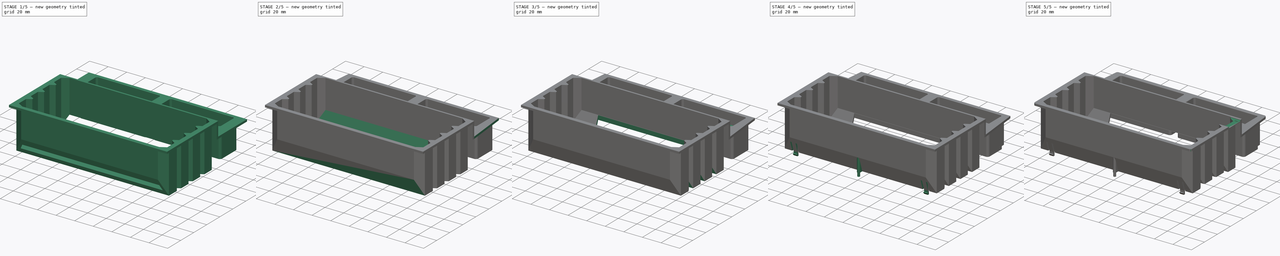
[diagram: build sequence overview — one tinted view per stage of 5, left to right]
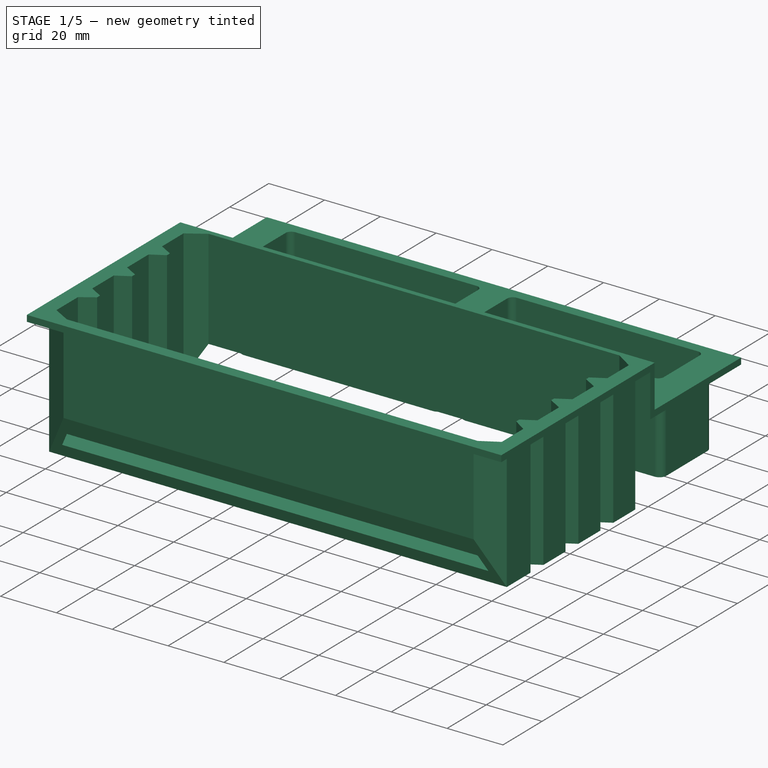
[diagram: stage 1 of 5 — iso view after this stage's code; geometry added in this stage tinted green]
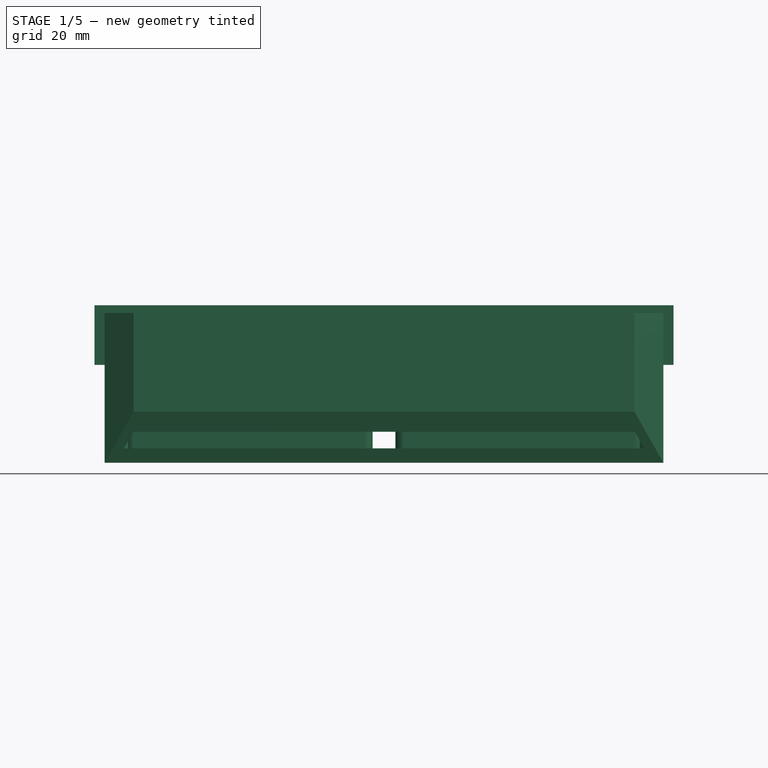
[diagram: stage 1 of 5 — front view after this stage's code; geometry added in this stage tinted green]
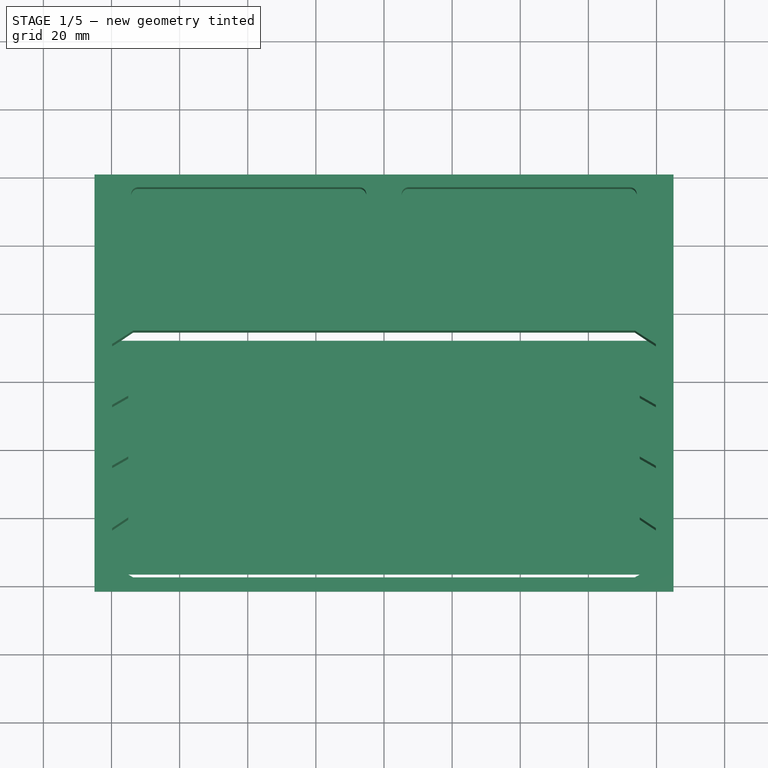
[diagram: stage 1 of 5 — top view after this stage's code; geometry added in this stage tinted green]
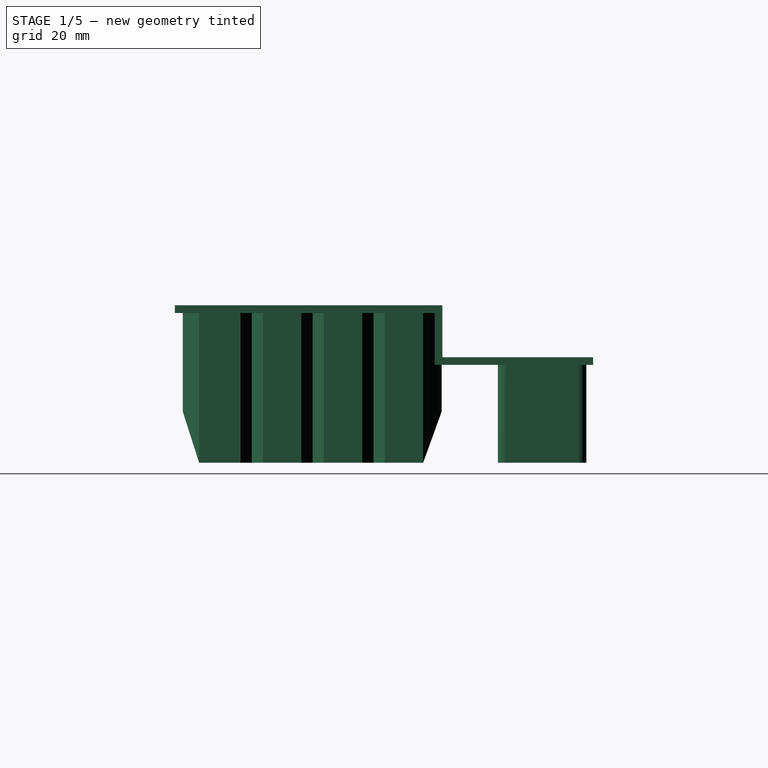
[diagram: stage 1 of 5 — right view after this stage's code; geometry added in this stage tinted green]
FCSTD DOCUMENT  (FreeCAD 1.0R38806 (Git))
Label: CartridgePort800
License: Creative Commons Attribution 4.0
LicenseURL: https://creativecommons.org/licenses/by/4.0/
objects: Sketcher::SketchObject×27, PartDesign::Pocket×16, PartDesign::Pad×14, PartDesign::Plane×3, PartDesign::Fillet×2, PartDesign::SubShapeBinder×1, PartDesign::Body×1
note: 155 computed .brp shape members not serialized (recipe doc carries the construction recipe); baked Part::Feature solids carry a one-line shape summary decoded from their .brp

FEATURE [Sketcher::SketchObject] Sketch
  ArcFitTolerance = 1e-06
  AttachmentSupport = -> [XY_Plane]
  FullyConstrained = true
  MakeInternals = false
  MapMode = 5
  sketch-geometry (52):
    g0: LineSegment StartX=-73.5 StartY=0 StartZ=0 EndX=73.5 EndY=0 EndZ=0
    g1: LineSegment StartX=73.5 StartY=76 StartZ=0 EndX=-73.5 EndY=76 EndZ=0
    g2: LineSegment StartX=3.35 StartY=116 StartZ=0 EndX=3.35 EndY=95 EndZ=0
    g3: LineSegment StartX=5.85 StartY=92.5 StartZ=0 EndX=73.55 EndY=92.5 EndZ=0
    g4: LineSegment StartX=76.05 StartY=95 StartZ=0 EndX=76.05 EndY=116 EndZ=0
    g5: LineSegment StartX=73.55 StartY=118.5 StartZ=0 EndX=5.85 EndY=118.5 EndZ=0
    g6: ArcOfCircle CenterX=5.85 CenterY=116 CenterZ=0 NormalX=0 NormalY=0 NormalZ=1 AngleXU=0 Radius=2.5 StartAngle=1.5708 EndAngle=3.14159
    g7: ArcOfCircle CenterX=5.85 CenterY=95 CenterZ=0 NormalX=0 NormalY=0 NormalZ=1 AngleXU=0 Radius=2.5 StartAngle=3.14159 EndAngle=4.71239
    g8: ArcOfCircle CenterX=73.55 CenterY=95 CenterZ=0 NormalX=0 NormalY=0 NormalZ=1 AngleXU=0 Radius=2.5 StartAngle=4.71239 EndAngle=6.28319
    g9: ArcOfCircle CenterX=73.55 CenterY=116 CenterZ=0 NormalX=0 NormalY=0 NormalZ=1 AngleXU=0 Radius=2.5 StartAngle=-2.7e-15 EndAngle=1.5708
    g10: GeomPoint [constr] X=3.35 Y=118.5 Z=0
    g11: GeomPoint [constr] X=76.05 Y=92.5 Z=0
    g12: LineSegment StartX=-76.05 StartY=116 StartZ=0 EndX=-76.05 EndY=95 EndZ=0
    g13: LineSegment StartX=-73.55 StartY=92.5 StartZ=0 EndX=-5.85 EndY=92.5 EndZ=0
    g14: LineSegment StartX=-3.35 StartY=95 StartZ=0 EndX=-3.35 EndY=116 EndZ=0
    g15: LineSegment StartX=-5.85 StartY=118.5 StartZ=0 EndX=-73.55 EndY=118.5 EndZ=0
    g16: ArcOfCircle CenterX=-73.55 CenterY=116 CenterZ=0 NormalX=0 NormalY=0 NormalZ=1 AngleXU=0 Radius=2.5 StartAngle=1.5708 EndAngle=3.14159
    g17: ArcOfCircle CenterX=-73.55 CenterY=95 CenterZ=0 NormalX=0 NormalY=0 NormalZ=1 AngleXU=0 Radius=2.5 StartAngle=3.14159 EndAngle=4.71239
    g18: ArcOfCircle CenterX=-5.85 CenterY=95 CenterZ=0 NormalX=0 NormalY=0 NormalZ=1 AngleXU=0 Radius=2.5 StartAngle=4.71239 EndAngle=6.28319
    g19: ArcOfCircle CenterX=-5.85 CenterY=116 CenterZ=0 NormalX=0 NormalY=0 NormalZ=1 AngleXU=0 Radius=2.5 StartAngle=-1.8e-15 EndAngle=1.5708
    g20: GeomPoint [constr] X=-76.05 Y=118.5 Z=0
    g21: GeomPoint [constr] X=-3.35 Y=92.5 Z=0
    g22: LineSegment StartX=76.2 StartY=56 StartZ=0 EndX=82 EndY=59.3 EndZ=0
    g23: LineSegment StartX=82 StartY=52.7 StartZ=0 EndX=76.2 EndY=56 EndZ=0
    g24: LineSegment StartX=82 StartY=41.4333 StartZ=0 EndX=82 EndY=52.7 EndZ=0
    g25: LineSegment StartX=76.2 StartY=38.1333 StartZ=0 EndX=82 EndY=41.4333 EndZ=0
    g26: LineSegment StartX=82 StartY=34.8333 StartZ=0 EndX=76.2 EndY=38.1333 EndZ=0
    g27: LineSegment StartX=82 StartY=23.5667 StartZ=0 EndX=82 EndY=34.8333 EndZ=0
    g28: LineSegment StartX=76.2 StartY=20.2667 StartZ=0 EndX=82 EndY=23.5667 EndZ=0
    g29: LineSegment StartX=82 StartY=16.9667 StartZ=0 EndX=76.2 EndY=20.2667 EndZ=0
    g30: LineSegment StartX=-82 StartY=59.3 StartZ=0 EndX=-76.2 EndY=56 EndZ=0
    g31: LineSegment StartX=-76.2 StartY=56 StartZ=0 EndX=-82 EndY=52.7 EndZ=0
    g32: LineSegment StartX=-82 StartY=52.7 StartZ=0 EndX=-82 EndY=41.4333 EndZ=0
    g33: LineSegment StartX=-82 StartY=41.4333 StartZ=0 EndX=-76.2 EndY=38.1333 EndZ=0
    g34: LineSegment StartX=-76.2 StartY=38.1333 StartZ=0 EndX=-82 EndY=34.8333 EndZ=0
    g35: LineSegment StartX=-82 StartY=34.8333 StartZ=0 EndX=-82 EndY=23.5667 EndZ=0
    g36: LineSegment StartX=-82 StartY=23.5667 StartZ=0 EndX=-76.2 EndY=20.2667 EndZ=0
    g37: LineSegment StartX=-76.2 StartY=20.2667 StartZ=0 EndX=-82 EndY=16.9667 EndZ=0
    g38: LineSegment [constr] StartX=-76.2 StartY=56 StartZ=0 EndX=76.2 EndY=56 EndZ=0
    g39: LineSegment [constr] StartX=-76.2 StartY=38.1333 StartZ=0 EndX=76.2 EndY=38.1333 EndZ=0
    g40: LineSegment [constr] StartX=-76.2 StartY=20.2667 StartZ=0 EndX=76.2 EndY=20.2667 EndZ=0
    g41: LineSegment [constr] StartX=82 StartY=59.3 StartZ=0 EndX=82 EndY=52.7 EndZ=0
    g42: LineSegment [constr] StartX=82 StartY=34.8333 StartZ=0 EndX=82 EndY=41.4333 EndZ=0
    g43: LineSegment [constr] StartX=82 StartY=23.5667 StartZ=0 EndX=82 EndY=16.9667 EndZ=0
    g44: LineSegment StartX=73.5 StartY=0 StartZ=0 EndX=82 EndY=4.8 EndZ=0
    g45: LineSegment StartX=82 StartY=4.8 StartZ=0 EndX=82 EndY=16.9667 EndZ=0
    g46: LineSegment StartX=-82 StartY=16.9667 StartZ=0 EndX=-82 EndY=4.8 EndZ=0
    g47: LineSegment StartX=-82 StartY=4.8 StartZ=0 EndX=-73.5 EndY=0 EndZ=0
    g48: LineSegment StartX=82 StartY=59.3 StartZ=0 EndX=82 EndY=70.5667 EndZ=0
    g49: LineSegment StartX=82 StartY=70.5667 StartZ=0 EndX=73.5 EndY=76 EndZ=0
    g50: LineSegment StartX=-73.5 StartY=76 StartZ=0 EndX=-82 EndY=70.5667 EndZ=0
    g51: LineSegment StartX=-82 StartY=70.5667 StartZ=0 EndX=-82 EndY=59.3 EndZ=0
  constraints (131):
    c: Coincident(g0,g44)
    c: Coincident(g49,g1)
    c: Coincident(g1,g50)
    c: Coincident(g47,g0)
    c: Horizontal(g1)
    c: PointOnObject(g0,g-1)
    c: Symmetric(g0,g0,g-2)
    c: Tangent(g2,g6) = -1.5708
    c: Tangent(g2,g7) = -1.5708
    c: Tangent(g3,g7) = -1.5708
    c: Tangent(g3,g8) = -1.5708
    c: Tangent(g4,g8) = -1.5708
    c: Tangent(g4,g9) = -1.5708
    c: Tangent(g5,g9) = -1.5708
    c: Tangent(g5,g6) = -1.5708
    c: Vertical(g2)
    c: Vertical(g4)
    c: Horizontal(g3)
    c: Horizontal(g5)
    c: Equal(g6,g7)
    c: Equal(g7,g8)
    c: Equal(g8,g9)
    c: PointOnObject(g10,g2)
    c: PointOnObject(g10,g5)
    c: PointOnObject(g11,g3)
    c: PointOnObject(g11,g4)
    c: Distance(g2,g4) = 72.7
    c: Distance(g3,g5) = 26
    c: Radius(g7) = 2.5
    c: DistanceY(g0,g5) = 118.5
    c: Tangent(g12,g16) = -1.5708
    c: Tangent(g12,g17) = -1.5708
    c: Tangent(g13,g17) = -1.5708
    c: Tangent(g13,g18) = -1.5708
    c: Tangent(g14,g18) = -1.5708
    c: Tangent(g14,g19) = -1.5708
    c: Tangent(g15,g19) = -1.5708
    c: Tangent(g15,g16) = -1.5708
    c: Vertical(g12)
    c: Vertical(g14)
    c: Horizontal(g13)
    c: Horizontal(g15)
    c: Equal(g16,g17)
    c: Equal(g17,g18)
    c: Equal(g18,g19)
    c: PointOnObject(g20,g12)
    c: PointOnObject(g20,g15)
    c: PointOnObject(g21,g13)
    c: PointOnObject(g21,g14)
    c: Equal(g18,g8)
    c: Equal(g5,g15)
    c: Equal(g2,g14)
    c: DistanceX(g14,g2) = 6.7
    c: Symmetric(g14,g2,g-2)
    c: Coincident(g22,g48)
    c: Coincident(g23,g22)
    c: Coincident(g24,g23)
    c: Coincident(g25,g24)
    c: Vertical(g24)
    c: Coincident(g26,g25)
    c: Coincident(g27,g26)
    c: Coincident(g28,g27)
    c: Vertical(g27)
    c: Coincident(g29,g28)
    c: Coincident(g45,g29)
    c: Coincident(g51,g30)
    c: Coincident(g30,g31)
    c: Coincident(g31,g32)
    c: Coincident(g32,g33)
    c: Vertical(g32)
    c: Coincident(g33,g34)
    c: Coincident(g34,g35)
    c: Coincident(g35,g36)
    c: Vertical(g35)
    c: Coincident(g36,g37)
    c: Coincident(g37,g46)
    c: Horizontal(g51,g48)
    c: Horizontal(g31,g23)
    c: Vertical(g51,g31)
    c: Vertical(g32,g34)
    c: Vertical(g35,g37)
    c: Vertical(g24,g26)
    c: Vertical(g27,g45)
    c: Vertical(g22,g25)
    c: Vertical(g25,g28)
    c: Vertical(g30,g33)
    c: Vertical(g36,g33)
    c: Horizontal(g34,g26)
    c: Horizontal(g32,g24)
    c: Horizontal(g37,g45)
    c: Horizontal(g35,g27)
    c: Coincident(g38,g30)
    c: Coincident(g38,g22)
    c: Coincident(g39,g33)
    c: Coincident(g39,g25)
    c: Coincident(g40,g36)
    c: Coincident(g40,g28)
    c: Symmetric(g48,g23,g38)
    c: Symmetric(g24,g26,g39)
    c: Symmetric(g27,g45,g40)
    c: Equal(g32,g35)
    c: DistanceX(g22,g48) = 5.8
    c: Symmetric(g30,g22,g-2)
    c: DistanceY(g0,g22) = 56
    c: DistanceY(g23,g48) = 6.6
    c: Coincident(g41,g48)
    c: Coincident(g41,g23)
    c: Coincident(g42,g26)
    c: Coincident(g42,g24)
    c: Coincident(g43,g27)
    c: Coincident(g43,g45)
    c: Equal(g41,g42)
    c: Equal(g41,g43)
    c: Coincident(g44,g45)
    c: Vertical(g45)
    c: Coincident(g46,g47)
    c: Vertical(g46)
    c: DistanceX(g46,g44) = 164
    c: DistanceY(g0,g1) = 76
    c: Symmetric(g46,g44,g-2)
    c: DistanceX(g0,g0) = 147
    c: DistanceY(g0,g44) = 4.8
    c: DistanceY(g25,g22) = 17.8667
    c: Coincident(g48,g49)
    c: Vertical(g48)
    c: Coincident(g50,g51)
    c: Vertical(g51)
    c: Vertical(g1,g0)
    c: Vertical(g1,g0)
    c: Equal(g24,g48)
    c: Horizontal(g50,g48)
FEATURE [Sketcher::SketchObject] Sketch001
  ArcFitTolerance = 1e-06
  AttachmentSupport = -> [YZ_Plane]
  FullyConstrained = true
  MakeInternals = false
  MapMode = 5
  Placement = pos=(0,0,0) rot=(0.57735,0.57735,0.57735;2.0944rad)
  sketch-geometry (8):
    g0: LineSegment StartX=-2.3 StartY=43.95 StartZ=0 EndX=73.95 EndY=43.95 EndZ=0
    g1: LineSegment StartX=73.95 StartY=43.95 StartZ=0 EndX=73.95 EndY=28.7 EndZ=0
    g2: LineSegment StartX=73.95 StartY=28.7 StartZ=0 EndX=120.45 EndY=28.7 EndZ=0
    g3: LineSegment StartX=120.45 StartY=28.7 StartZ=0 EndX=120.45 EndY=30.95 EndZ=0
    g4: LineSegment StartX=120.45 StartY=30.95 StartZ=0 EndX=76.2 EndY=30.95 EndZ=0
    g5: LineSegment StartX=76.2 StartY=30.95 StartZ=0 EndX=76.2 EndY=46.2 EndZ=0
    g6: LineSegment StartX=76.2 StartY=46.2 StartZ=0 EndX=-2.3 EndY=46.2 EndZ=0
    g7: LineSegment StartX=-2.3 StartY=46.2 StartZ=0 EndX=-2.3 EndY=43.95 EndZ=0
  constraints (24):
    c: Horizontal(g0)
    c: Coincident(g0,g1)
    c: Vertical(g1)
    c: Coincident(g1,g2)
    c: Horizontal(g2)
    c: Coincident(g2,g3)
    c: Vertical(g3)
    c: Coincident(g3,g4)
    c: Horizontal(g4)
    c: Coincident(g4,g5)
    c: Vertical(g5)
    c: Coincident(g5,g6)
    c: Horizontal(g6)
    c: Coincident(g6,g7)
    c: Coincident(g7,g0)
    c: Vertical(g7)
    c: Equal(g7,g3)
    c: DistanceY(g3,g3) = 2.25
    c: DistanceX(g0,g5) = 2.25
    c: DistanceX(g6,g5) = 78.5
    c: DistanceX(g1,g2) = 46.5
    c: DistanceY(g1,g5) = 17.5
    c: DistanceY(g-1,g6) = 46.2
    c: DistanceX(g0,g-1) = 2.3
FEATURE [PartDesign::Pad] Pad
  Direction = (1,0,0)
  Length = 170
  Length2 = 10
  Midplane = true
  Placement = pos=(0,0,0) rot=(1,1,1;2.0944rad)
  Profile = -> Sketch001
  ReferenceAxis = -> Sketch001 [N_Axis]
  Suppressed = false
  Type = 0
FEATURE [PartDesign::Pad] Pad001
  BaseFeature = -> Pad
  Direction = (0,0,1)
  Length = 10
  Length2 = 10
  Placement = pos=(0,0,0) rot=(1,1,1;2.0944rad)
  Profile = -> Sketch [Edge31,Edge32,Edge33,Edge34,Edge27,Edge28,Edge29,Edge30,Edge40,Edge41,Edge42,Edge35,Edge36,Edge37,Edge38,Edge39]
  ReferenceAxis = -> Sketch [N_Axis]
  Suppressed = false
  Type = 3
  UpToFace = -> Pad [Face3]
FEATURE [PartDesign::Pad] Pad002
  BaseFeature = -> Pad001
  Direction = (0,0,1)
  Length = 10
  Length2 = 10
  Placement = pos=(0,0,0) rot=(1,1,1;2.0944rad)
  Profile = -> Sketch [Edge14,Edge15,Edge16,Edge17,Edge18,Edge19,Edge20,Edge21,Edge22,Edge23,Edge24,Edge25,Edge26,Edge1,Edge2,Edge3,Edge4,Edge5,Edge6,Edge7,Edge8,Edge9,Edge10,Edge11,Edge12,Edge13]
  ReferenceAxis = -> Sketch [N_Axis]
  Suppressed = false
  Type = 3
  UpToFace = -> Pad001 [Face1]
FEATURE [Sketcher::SketchObject] Sketch002
  ArcFitTolerance = 1e-06
  AttachmentSupport = -> [YZ_Plane]
  ExternalGeometry = -> [Pad002]
  FullyConstrained = true
  MakeInternals = false
  MapMode = 5
  Placement = pos=(0,0,0) rot=(0.57735,0.57735,0.57735;2.0944rad)
  sketch-geometry (6):
    g0: LineSegment StartX=4.8 StartY=0 StartZ=0 EndX=0 EndY=15 EndZ=0
    g1: LineSegment StartX=0 StartY=15 StartZ=0 EndX=0 EndY=0 EndZ=0
    g2: LineSegment StartX=0 StartY=0 StartZ=0 EndX=4.8 EndY=0 EndZ=0
    g3: LineSegment StartX=76 StartY=15 StartZ=0 EndX=76 EndY=0 EndZ=0
    g4: LineSegment StartX=76 StartY=0 StartZ=0 EndX=70.5667 EndY=0 EndZ=0
    g5: LineSegment StartX=70.5667 StartY=0 StartZ=0 EndX=76 EndY=15 EndZ=0
  constraints (15):
    c: PointOnObject(g0,g-2)
    c: Coincident(g0,g1)
    c: Coincident(g1,g-1)
    c: Coincident(g1,g2)
    c: Coincident(g2,g0)
    c: PointOnObject(g3,g-1)
    c: Vertical(g3)
    c: Coincident(g3,g4)
    c: Coincident(g4,g5)
    c: Coincident(g5,g3)
    c: DistanceY(g1,g0) = 15
    c: Horizontal(g3,g0)
    c: Coincident(g4,g-4)
    c: Coincident(g0,g-3)
    c: PointOnObject(g3,g-5)
FEATURE [PartDesign::Pocket] Pocket
  BaseFeature = -> Pad002
  Direction = (-1,0,0)
  Length = 5
  Length2 = 5
  Midplane = true
  Placement = pos=(0,0,0) rot=(1,1,1;2.0944rad)
  Profile = -> Sketch002
  ReferenceAxis = -> Sketch002 [N_Axis]
  Suppressed = false
  Type = 1
FEATURE [Sketcher::SketchObject] Sketch003
  ArcFitTolerance = 1e-06
  AttachmentSupport = -> [Pocket]
  ExternalGeometry = -> [Sketch]
  FullyConstrained = true
  MakeInternals = false
  MapMode = 5
  Placement = pos=(-3.44e-14,2.06e-14,30.95) rot=(0,0,-1;1.5708rad)
  sketch-geometry (22):
    g0: LineSegment StartX=-116.7 StartY=72.2 StartZ=0 EndX=-116.7 EndY=7.2 EndZ=0
    g1: LineSegment StartX=-114.7 StartY=5.2 StartZ=0 EndX=-96.3 EndY=5.2 EndZ=0
    g2: LineSegment StartX=-94.3 StartY=7.2 StartZ=0 EndX=-94.3 EndY=72.2 EndZ=0
    g3: LineSegment StartX=-96.3 StartY=74.2 StartZ=0 EndX=-114.7 EndY=74.2 EndZ=0
    g4: ArcOfCircle CenterX=-114.7 CenterY=72.2 CenterZ=0 NormalX=0 NormalY=0 NormalZ=1 AngleXU=0 Radius=2 StartAngle=1.5708 EndAngle=3.14159
    g5: ArcOfCircle CenterX=-114.7 CenterY=7.2 CenterZ=0 NormalX=0 NormalY=0 NormalZ=1 AngleXU=0 Radius=2 StartAngle=3.14159 EndAngle=4.71239
    g6: ArcOfCircle CenterX=-96.3 CenterY=7.2 CenterZ=0 NormalX=0 NormalY=0 NormalZ=1 AngleXU=0 Radius=2 StartAngle=4.71239 EndAngle=6.28319
    g7: ArcOfCircle CenterX=-96.3 CenterY=72.2 CenterZ=0 NormalX=0 NormalY=0 NormalZ=1 AngleXU=0 Radius=2 StartAngle=3.1e-15 EndAngle=1.5708
    g8: GeomPoint [constr] X=-116.7 Y=74.2 Z=0
    g9: GeomPoint [constr] X=-94.3 Y=5.2 Z=0
    g10: GeomPoint X=-105.5 Y=39.7 Z=0
    g11: LineSegment StartX=-116.7 StartY=-7.2 StartZ=0 EndX=-116.7 EndY=-72.2 EndZ=0
    g12: LineSegment StartX=-114.7 StartY=-74.2 StartZ=0 EndX=-96.3 EndY=-74.2 EndZ=0
    g13: LineSegment StartX=-94.3 StartY=-72.2 StartZ=0 EndX=-94.3 EndY=-7.2 EndZ=0
    g14: LineSegment StartX=-96.3 StartY=-5.2 StartZ=0 EndX=-114.7 EndY=-5.2 EndZ=0
    g15: ArcOfCircle CenterX=-114.7 CenterY=-7.2 CenterZ=0 NormalX=0 NormalY=0 NormalZ=1 AngleXU=0 Radius=2 StartAngle=1.5708 EndAngle=3.14159
    g16: ArcOfCircle CenterX=-114.7 CenterY=-72.2 CenterZ=0 NormalX=0 NormalY=0 NormalZ=1 AngleXU=0 Radius=2 StartAngle=3.14159 EndAngle=4.71239
    g17: ArcOfCircle CenterX=-96.3 CenterY=-72.2 CenterZ=0 NormalX=0 NormalY=0 NormalZ=1 AngleXU=0 Radius=2 StartAngle=4.71239 EndAngle=6.28319
    g18: ArcOfCircle CenterX=-96.3 CenterY=-7.2 CenterZ=0 NormalX=0 NormalY=0 NormalZ=1 AngleXU=0 Radius=2 StartAngle=0 EndAngle=1.5708
    g19: GeomPoint [constr] X=-116.7 Y=-5.2 Z=0
    g20: GeomPoint [constr] X=-94.3 Y=-74.2 Z=0
    g21: GeomPoint X=-105.5 Y=-39.7 Z=0
  constraints (48):
    c: Tangent(g0,g4) = -1.5708
    c: Tangent(g0,g5) = -1.5708
    c: Tangent(g1,g5) = -1.5708
    c: Tangent(g1,g6) = -1.5708
    c: Tangent(g2,g6) = -1.5708
    c: Tangent(g2,g7) = -1.5708
    c: Tangent(g3,g7) = -1.5708
    c: Tangent(g3,g4) = -1.5708
    c: Vertical(g0)
    c: Vertical(g2)
    c: Horizontal(g1)
    c: Horizontal(g3)
    c: Equal(g4,g5)
    c: Equal(g5,g6)
    c: Equal(g6,g7)
    c: PointOnObject(g8,g0)
    c: PointOnObject(g8,g3)
    c: PointOnObject(g9,g1)
    c: PointOnObject(g9,g2)
    c: DistanceX(g0,g2) = 22.4
    c: DistanceY(g1,g3) = 69
    c: Symmetric(g-4,g-6,g10)
    c: Symmetric(g7,g5,g10)
    c: Radius(g4) = 2
    c: Tangent(g11,g15) = -1.5708
    c: Tangent(g11,g16) = -1.5708
    c: Tangent(g12,g16) = -1.5708
    c: Tangent(g12,g17) = -1.5708
    c: Tangent(g13,g17) = -1.5708
    c: Tangent(g13,g18) = -1.5708
    c: Tangent(g14,g18) = -1.5708
    c: Tangent(g14,g15) = -1.5708
    c: Vertical(g11)
    c: Vertical(g13)
    c: Horizontal(g12)
    c: Horizontal(g14)
    c: Equal(g15,g16)
    c: Equal(g16,g17)
    c: Equal(g17,g18)
    c: PointOnObject(g19,g11)
    c: PointOnObject(g19,g14)
    c: PointOnObject(g20,g12)
    c: PointOnObject(g20,g13)
    c: Equal(g4,g15)
    c: Equal(g1,g14)
    c: Equal(g2,g13)
    c: Symmetric(g-8,g-10,g21)
    c: Symmetric(g18,g16,g21)
FEATURE [PartDesign::Pocket] Pocket001
  BaseFeature = -> Pocket
  Direction = (1.1e-15,0,-1)
  Length = 28.9
  Length2 = 5
  Placement = pos=(0,0,0) rot=(1,1,1;2.0944rad)
  Profile = -> Sketch003
  ReferenceAxis = -> Sketch003 [N_Axis]
  Suppressed = false
  Type = 0
FEATURE [Sketcher::SketchObject] Sketch004
  ArcFitTolerance = 1e-06
  AttachmentSupport = -> [Pocket001]
  ExternalGeometry = -> [Sketch]
  FullyConstrained = true
  MakeInternals = false
  MapMode = 5
  Placement = pos=(-6.67e-14,3.59e-14,46.2) rot=(0,0,-1;1.5708rad)
  sketch-geometry (47):
    g0: LineSegment StartX=-74.3889 StartY=73.6119 StartZ=0 EndX=-70.4333 EndY=79.8 EndZ=0
    g1: LineSegment StartX=-70.4333 StartY=79.8 StartZ=0 EndX=-59.4333 EndY=79.8 EndZ=0
    g2: LineSegment StartX=-59.4333 StartY=79.8 StartZ=0 EndX=-56.75 EndY=75.0838 EndZ=0
    g3: LineSegment StartX=-56.75 StartY=75.0838 StartZ=0 EndX=-55.25 EndY=75.0838 EndZ=0
    g4: LineSegment StartX=-55.25 StartY=75.0838 StartZ=0 EndX=-52.5667 EndY=79.8 EndZ=0
    g5: LineSegment StartX=-52.5667 StartY=79.8 StartZ=0 EndX=-41.5667 EndY=79.8 EndZ=0
    g6: LineSegment StartX=-41.5667 StartY=79.8 StartZ=0 EndX=-38.8833 EndY=75.0838 EndZ=0
    g7: LineSegment StartX=-38.8833 StartY=75.0838 StartZ=0 EndX=-37.3833 EndY=75.0838 EndZ=0
    g8: LineSegment StartX=-37.3833 StartY=75.0838 StartZ=0 EndX=-34.7 EndY=79.8 EndZ=0
    g9: LineSegment StartX=-34.7 StartY=79.8 StartZ=0 EndX=-23.7 EndY=79.8 EndZ=0
    g10: LineSegment StartX=-23.7 StartY=79.8 StartZ=0 EndX=-21.0167 EndY=75.0838 EndZ=0
    g11: LineSegment StartX=-21.0167 StartY=75.0838 StartZ=0 EndX=-19.5167 EndY=75.0838 EndZ=0
    g12: LineSegment StartX=-19.5167 StartY=75.0838 StartZ=0 EndX=-16.3833 EndY=79.8 EndZ=0
    g13: LineSegment StartX=-16.3833 StartY=79.8 StartZ=0 EndX=-5.38333 EndY=79.8 EndZ=0
    g14: LineSegment StartX=-5.38333 StartY=79.8 StartZ=0 EndX=-1.88887 EndY=73.6119 EndZ=0
    g15: LineSegment StartX=-1.88887 StartY=73.6119 StartZ=0 EndX=-1.88887 EndY=-73.6119 EndZ=0
    g16: LineSegment StartX=-1.88887 StartY=-73.6119 StartZ=0 EndX=-5.38333 EndY=-79.8 EndZ=0
    g17: LineSegment StartX=-5.38333 StartY=-79.8 StartZ=0 EndX=-16.3833 EndY=-79.8 EndZ=0
    g18: LineSegment StartX=-16.3833 StartY=-79.8 StartZ=0 EndX=-19.5167 EndY=-75.0838 EndZ=0
    g19: LineSegment StartX=-19.5167 StartY=-75.0838 StartZ=0 EndX=-21.0167 EndY=-75.0838 EndZ=0
    g20: LineSegment StartX=-21.0167 StartY=-75.0838 StartZ=0 EndX=-23.7 EndY=-79.8 EndZ=0
    g21: LineSegment StartX=-23.7 StartY=-79.8 StartZ=0 EndX=-34.7 EndY=-79.8 EndZ=0
    g22: LineSegment StartX=-34.7 StartY=-79.8 StartZ=0 EndX=-37.3833 EndY=-75.0838 EndZ=0
    g23: LineSegment StartX=-37.3833 StartY=-75.0838 StartZ=0 EndX=-38.8833 EndY=-75.0838 EndZ=0
    g24: LineSegment StartX=-38.8833 StartY=-75.0838 StartZ=0 EndX=-41.5667 EndY=-79.8 EndZ=0
    g25: LineSegment StartX=-41.5667 StartY=-79.8 StartZ=0 EndX=-52.5667 EndY=-79.8 EndZ=0
    g26: LineSegment StartX=-52.5667 StartY=-79.8 StartZ=0 EndX=-55.25 EndY=-75.0838 EndZ=0
    g27: LineSegment StartX=-55.25 StartY=-75.0838 StartZ=0 EndX=-56.75 EndY=-75.0838 EndZ=0
    g28: LineSegment StartX=-56.75 StartY=-75.0838 StartZ=0 EndX=-59.4333 EndY=-79.8 EndZ=0
    g29: LineSegment StartX=-59.4333 StartY=-79.8 StartZ=0 EndX=-70.4333 EndY=-79.8 EndZ=0
    g30: LineSegment StartX=-70.4333 StartY=-79.8 StartZ=0 EndX=-74.3889 EndY=-73.6119 EndZ=0
    g31: LineSegment StartX=-74.3889 StartY=-73.6119 StartZ=0 EndX=-74.3889 EndY=73.6119 EndZ=0
    g32: GeomPoint [constr] X=-64.9333 Y=-82 Z=0
    g33: GeomPoint [constr] X=-47.0667 Y=-82 Z=0
    g34: GeomPoint [constr] X=-29.2 Y=-82 Z=0
    g35: GeomPoint [constr] X=-10.8833 Y=-82 Z=0
    g36: GeomPoint [constr] X=-64.9333 Y=82 Z=0
    g37: GeomPoint [constr] X=-47.0667 Y=82 Z=0
    g38: GeomPoint [constr] X=-29.2 Y=82 Z=0
    g39: GeomPoint [constr] X=-10.8833 Y=82 Z=0
    g40: LineSegment [constr] StartX=-64.9333 StartY=82 StartZ=0 EndX=-64.9333 EndY=-82 EndZ=0
    g41: LineSegment [constr] StartX=-47.0667 StartY=82 StartZ=0 EndX=-47.0667 EndY=-82 EndZ=0
    g42: LineSegment [constr] StartX=-29.2 StartY=82 StartZ=0 EndX=-29.2 EndY=-82 EndZ=0
    g43: LineSegment [constr] StartX=-10.8833 StartY=82 StartZ=0 EndX=-10.8833 EndY=-82 EndZ=0
    g44: LineSegment [constr] StartX=-56 StartY=76.2 StartZ=0 EndX=-56 EndY=-76.2 EndZ=0
    g45: LineSegment [constr] StartX=-38.1333 StartY=76.2 StartZ=0 EndX=-38.1333 EndY=-76.2 EndZ=0
    g46: LineSegment [constr] StartX=-20.2667 StartY=76.2 StartZ=0 EndX=-20.2667 EndY=-76.2 EndZ=0
  constraints (108):
    c: Coincident(g0,g1)
    c: Coincident(g1,g2)
    c: Coincident(g2,g3)
    c: Coincident(g3,g4)
    c: Coincident(g4,g5)
    c: Coincident(g5,g6)
    c: Coincident(g6,g7)
    c: Horizontal(g7)
    c: Coincident(g7,g8)
    c: Coincident(g8,g9)
    c: Coincident(g9,g10)
    c: Coincident(g10,g11)
    c: Horizontal(g11)
    c: Coincident(g11,g12)
    c: Coincident(g12,g13)
    c: Coincident(g13,g14)
    c: Coincident(g14,g15)
    c: Vertical(g15)
    c: Coincident(g15,g16)
    c: Coincident(g16,g17)
    c: Horizontal(g17)
    c: Coincident(g17,g18)
    c: Coincident(g18,g19)
    c: Horizontal(g19)
    c: Coincident(g19,g20)
    c: Coincident(g20,g21)
    c: Horizontal(g21)
    c: Coincident(g21,g22)
    c: Coincident(g22,g23)
    c: Horizontal(g23)
    c: Coincident(g23,g24)
    c: Coincident(g24,g25)
    c: Horizontal(g25)
    c: Coincident(g25,g26)
    c: Coincident(g26,g27)
    c: Horizontal(g27)
    c: Coincident(g27,g28)
    c: Coincident(g28,g29)
    c: Horizontal(g29)
    c: Coincident(g29,g30)
    c: Coincident(g30,g31)
    c: Coincident(g31,g0)
    c: Horizontal(g1,g4)
    c: Horizontal(g5,g8)
    c: Horizontal(g9,g12)
    c: Horizontal(g26,g23)
    c: Horizontal(g22,g19)
    c: Vertical(g28,g1)
    c: Vertical(g3,g26)
    c: Vertical(g25,g4)
    c: Vertical(g5,g24)
    c: Vertical(g23,g6)
    c: Vertical(g22,g7)
    c: Vertical(g8,g21)
    c: Vertical(g9,g20)
    c: Vertical(g19,g10)
    c: Vertical(g11,g18)
    c: Vertical(g17,g12)
    c: Vertical(g13,g16)
    c: Equal(g1,g5)
    c: Equal(g1,g9)
    c: Equal(g1,g13)
    c: Equal(g3,g7)
    c: Equal(g3,g11)
    c: Symmetric(g0,g30,g-1)
    c: Symmetric(g2,g27,g-1)
    c: Symmetric(g0,g29,g-1)
    c: DistanceY(g13,g-6) = 2.2
    c: Symmetric(g-12,g-12,g32)
    c: Symmetric(g-13,g-13,g33)
    c: Symmetric(g-14,g-14,g34)
    c: Symmetric(g-15,g-15,g35)
    c: Symmetric(g-3,g-3,g36)
    c: Symmetric(g-4,g-4,g37)
    c: Symmetric(g-5,g-5,g38)
    c: Symmetric(g-6,g-6,g39)
    c: Coincident(g40,g36)
    c: Coincident(g40,g32)
    c: Coincident(g41,g37)
    c: Coincident(g41,g33)
    c: Coincident(g42,g38)
    c: Coincident(g42,g34)
    c: Coincident(g43,g39)
    c: Coincident(g43,g35)
    c: Symmetric(g8,g9,g42)
    c: Symmetric(g4,g5,g41)
    c: Symmetric(g0,g1,g40)
    c: Symmetric(g12,g13,g43)
    c: Symmetric(g7,g10,g42)
    c: Symmetric(g3,g6,g41)
    c: Coincident(g44,g-7)
    c: Coincident(g44,g-19)
    c: Coincident(g45,g-8)
    c: Coincident(g45,g-18)
    c: Coincident(g46,g-9)
    c: Coincident(g46,g-17)
    c: Symmetric(g2,g3,g44)
    c: DistanceX(g3,g3) = 1.5
    c: DistanceX(g5,g5) = 11
    c: DistanceX(g0,g14) = 72.5
    c: Horizontal(g28,g25)
    c: Horizontal(g24,g21)
    c: Horizontal(g20,g17)
    c: Parallel(g-20,g0)
    c: Parallel(g-21,g14)
    c: Parallel(g-22,g2)
    c: Horizontal(g14,g0)
    c: Parallel(g-23,g16)
FEATURE [PartDesign::Pocket] Pocket002
  BaseFeature = -> Pocket001
  Direction = (1.4e-15,0,-1)
  Length = 42
  Length2 = 5
  Placement = pos=(0,0,0) rot=(1,1,1;2.0944rad)
  Profile = -> Sketch004
  ReferenceAxis = -> Sketch004 [N_Axis]
  Suppressed = false
  Type = 0
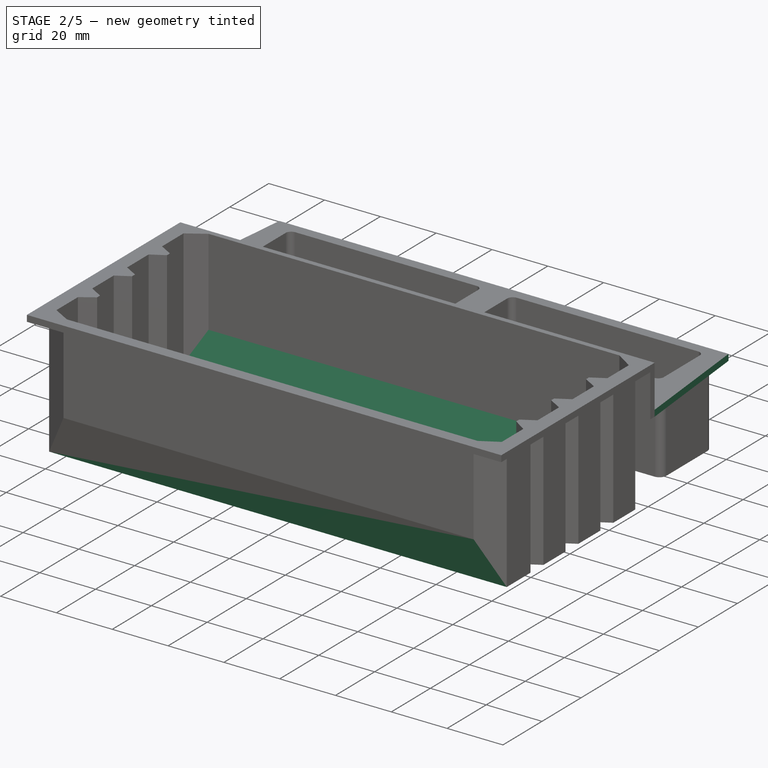
[diagram: stage 2 of 5 — iso view after this stage's code; geometry added in this stage tinted green]
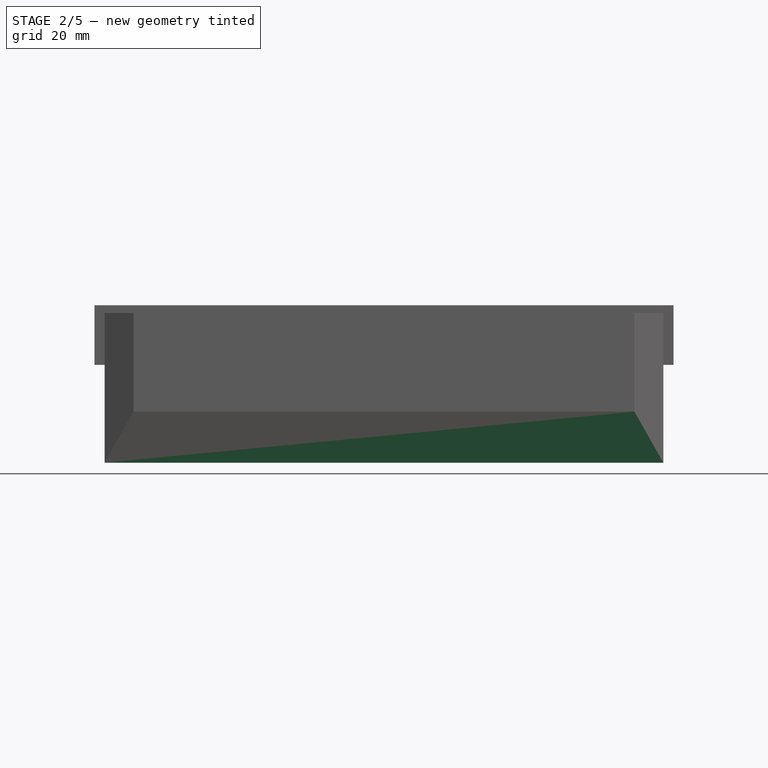
[diagram: stage 2 of 5 — front view after this stage's code; geometry added in this stage tinted green]
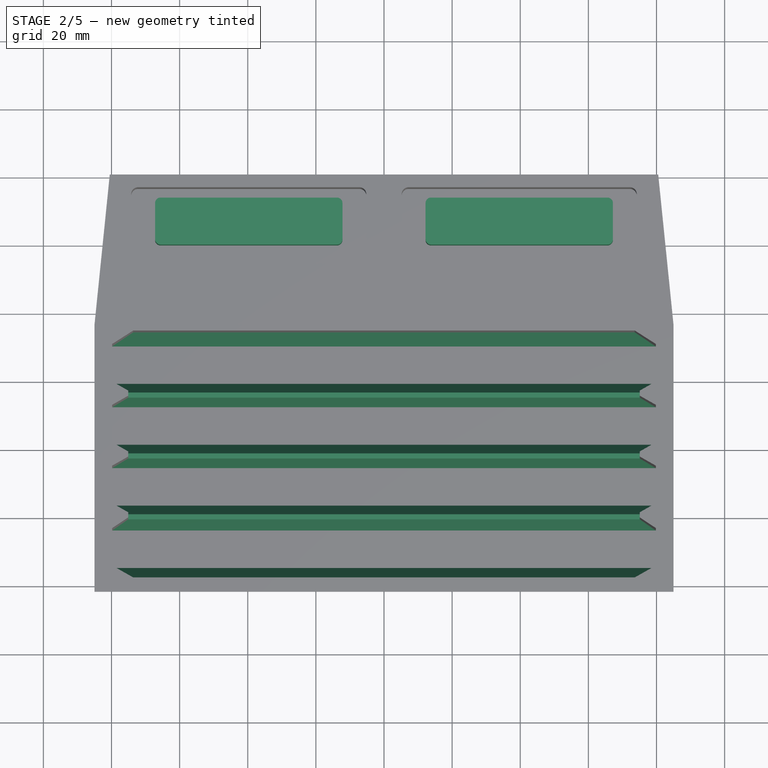
[diagram: stage 2 of 5 — top view after this stage's code; geometry added in this stage tinted green]
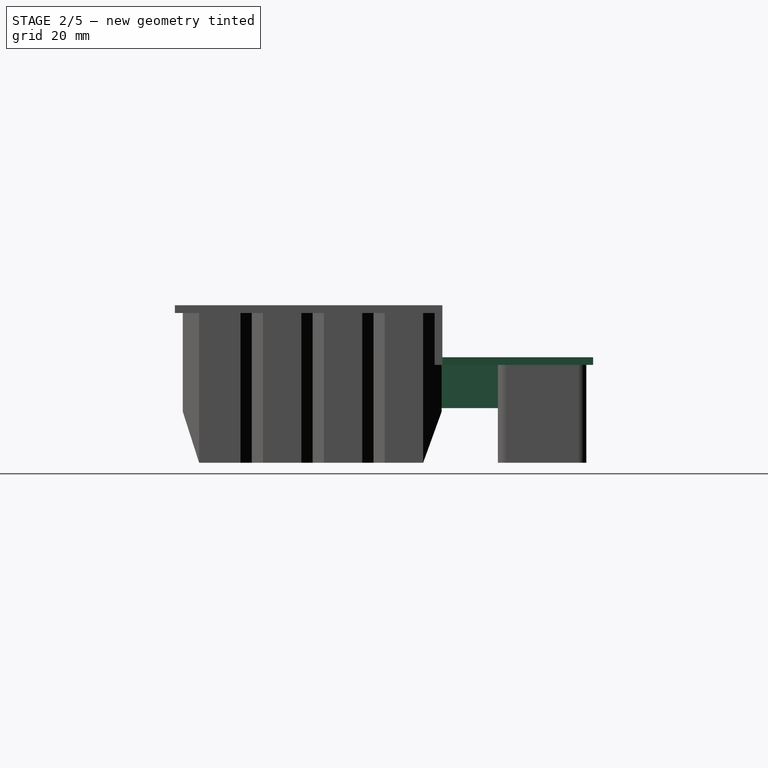
[diagram: stage 2 of 5 — right view after this stage's code; geometry added in this stage tinted green]
FEATURE [Sketcher::SketchObject] Sketch005
  ArcFitTolerance = 1e-06
  AttachmentSupport = -> [YZ_Plane]
  ExternalGeometry = -> [Pocket002]
  FullyConstrained = true
  MakeInternals = false
  MapMode = 5
  Placement = pos=(0,0,0) rot=(0.57735,0.57735,0.57735;2.0944rad)
  sketch-geometry (20):
    g0: LineSegment StartX=5.38333 StartY=4.2 StartZ=0 EndX=16.3833 EndY=4.2 EndZ=0
    g1: LineSegment StartX=16.3833 StartY=4.2 StartZ=0 EndX=19.5167 EndY=13.2 EndZ=0
    g2: LineSegment StartX=19.5167 StartY=13.2 StartZ=0 EndX=21.0167 EndY=13.2 EndZ=0
    g3: LineSegment StartX=21.0167 StartY=13.2 StartZ=0 EndX=23.7 EndY=4.2 EndZ=0
    g4: LineSegment StartX=23.7 StartY=4.2 StartZ=0 EndX=34.7 EndY=4.2 EndZ=0
    g5: LineSegment StartX=34.7 StartY=4.2 StartZ=0 EndX=37.3833 EndY=13.2 EndZ=0
    g6: LineSegment StartX=37.3833 StartY=13.2 StartZ=0 EndX=38.8833 EndY=13.2 EndZ=0
    g7: LineSegment StartX=38.8833 StartY=13.2 StartZ=0 EndX=41.5667 EndY=4.2 EndZ=0
    g8: LineSegment StartX=41.5667 StartY=4.2 StartZ=0 EndX=52.5667 EndY=4.2 EndZ=0
    g9: LineSegment StartX=52.5667 StartY=4.2 StartZ=0 EndX=55.25 EndY=13.2 EndZ=0
    g10: LineSegment StartX=55.25 StartY=13.2 StartZ=0 EndX=56.75 EndY=13.2 EndZ=0
    g11: LineSegment StartX=56.75 StartY=13.2 StartZ=0 EndX=59.4333 EndY=4.2 EndZ=0
    g12: LineSegment StartX=59.4333 StartY=4.2 StartZ=0 EndX=70.4333 EndY=4.2 EndZ=0
    g13: LineSegment StartX=70.4333 StartY=4.2 StartZ=0 EndX=74.3889 EndY=15.1202 EndZ=0
    g14: LineSegment StartX=71.7258 StartY=3.2 StartZ=0 EndX=3.776 EndY=3.2 EndZ=0
    g15: LineSegment StartX=1.88887 StartY=15.1202 StartZ=0 EndX=5.38333 EndY=4.2 EndZ=0
    g16: LineSegment StartX=3.776 StartY=3.2 StartZ=0 EndX=6.13e-14 EndY=15 EndZ=0
    g17: LineSegment StartX=6.13e-14 StartY=15 StartZ=0 EndX=1.88887 EndY=15.1202 EndZ=0
    g18: LineSegment StartX=74.3889 StartY=15.1202 StartZ=0 EndX=76 EndY=15 EndZ=0
    g19: LineSegment StartX=76 StartY=15 StartZ=0 EndX=71.7258 EndY=3.2 EndZ=0
  constraints (50):
    c: Coincident(g-4,g0)
    c: Coincident(g0,g-5)
    c: Coincident(g0,g1)
    c: PointOnObject(g1,g-6)
    c: Coincident(g1,g2)
    c: PointOnObject(g2,g-7)
    c: Horizontal(g2)
    c: Coincident(g2,g3)
    c: Coincident(g3,g-8)
    c: Coincident(g3,g4)
    c: Coincident(g4,g-9)
    c: Coincident(g4,g5)
    c: PointOnObject(g5,g-10)
    c: Coincident(g5,g6)
    c: PointOnObject(g6,g-11)
    c: Horizontal(g6)
    c: Coincident(g6,g7)
    c: Coincident(g7,g-12)
    c: Coincident(g7,g8)
    c: Coincident(g8,g-13)
    c: Coincident(g8,g9)
    c: PointOnObject(g9,g-14)
    c: Coincident(g9,g10)
    c: PointOnObject(g10,g-15)
    c: Horizontal(g10)
    c: Coincident(g10,g11)
    c: Coincident(g11,g-16)
    c: Coincident(g11,g12)
    c: Coincident(g12,g-17)
    c: Coincident(g12,g13)
    c: Coincident(g13,g18)
    c: Coincident(g19,g14)
    c: Horizontal(g14)
    c: Coincident(g14,g16)
    c: Coincident(g17,g15)
    c: Coincident(g15,g0)
    c: PointOnObject(g17,g-3)
    c: PointOnObject(g13,g-18)
    c: Horizontal(g9,g6)
    c: Horizontal(g5,g2)
    c: DistanceY(g14,g0) = 1
    c: DistanceY(g0,g1) = 9
    c: Horizontal(g13,g17)
    c: Parallel(g-19,g15)
    c: Coincident(g16,g17)
    c: Coincident(g16,g-19)
    c: PointOnObject(g14,g-19)
    c: Coincident(g18,g19)
    c: Coincident(g18,g-20)
    c: PointOnObject(g14,g-20)
FEATURE [PartDesign::Pad] Pad003
  BaseFeature = -> Pocket002
  Direction = (1,0,0)
  Length = 165
  Length2 = 10
  Midplane = true
  Placement = pos=(0,0,0) rot=(1,1,1;2.0944rad)
  Profile = -> Sketch005
  ReferenceAxis = -> Sketch005 [N_Axis]
  Refine = true
  Suppressed = false
  Type = 3
  UpToFace = -> Pocket002 [Face102]
FEATURE [PartDesign::Pad] Pad004
  BaseFeature = -> Pad003
  Direction = (1,0,0)
  Length = 10
  Length2 = 10
  Placement = pos=(0,0,0) rot=(1,1,1;2.0944rad)
  Profile = -> Sketch005
  ReferenceAxis = -> Sketch005 [N_Axis]
  Refine = true
  Suppressed = false
  Type = 3
  UpToFace = -> Pad003 [Face93]
FEATURE [Sketcher::SketchObject] Sketch006
  ArcFitTolerance = 1e-06
  AttachmentSupport = -> [Pad004]
  ExternalGeometry = -> [Pad004]
  FullyConstrained = true
  MakeInternals = false
  MapMode = 5
  Placement = pos=(0,0,-5.06e-14) rot=(0.707107,0.707107,0;3.14159rad)
  sketch-geometry (30):
    g0: LineSegment StartX=76 StartY=-73.5 StartZ=0 EndX=76 EndY=-83 EndZ=0
    g1: LineSegment StartX=76 StartY=-83 StartZ=0 EndX=9.95e-14 EndY=-83 EndZ=0
    g2: LineSegment StartX=9.95e-14 StartY=-83 StartZ=0 EndX=9.95e-14 EndY=-73.5 EndZ=0
    g3: LineSegment StartX=9.95e-14 StartY=-73.5 StartZ=0 EndX=4.8 EndY=-82 EndZ=0
    g4: LineSegment StartX=4.8 StartY=-82 StartZ=0 EndX=16.9667 EndY=-82 EndZ=0
    g5: LineSegment StartX=16.9667 StartY=-82 StartZ=0 EndX=20.2667 EndY=-76.2 EndZ=0
    g6: LineSegment StartX=20.2667 StartY=-76.2 StartZ=0 EndX=23.5667 EndY=-82 EndZ=0
    g7: LineSegment StartX=23.5667 StartY=-82 StartZ=0 EndX=34.8333 EndY=-82 EndZ=0
    g8: LineSegment StartX=34.8333 StartY=-82 StartZ=0 EndX=38.1333 EndY=-76.2 EndZ=0
    g9: LineSegment StartX=38.1333 StartY=-76.2 StartZ=0 EndX=41.4333 EndY=-82 EndZ=0
    g10: LineSegment StartX=41.4333 StartY=-82 StartZ=0 EndX=52.7 EndY=-82 EndZ=0
    g11: LineSegment StartX=52.7 StartY=-82 StartZ=0 EndX=56 EndY=-76.2 EndZ=0
    g12: LineSegment StartX=56 StartY=-76.2 StartZ=0 EndX=59.3 EndY=-82 EndZ=0
    g13: LineSegment StartX=59.3 StartY=-82 StartZ=0 EndX=70.5667 EndY=-82 EndZ=0
    g14: LineSegment StartX=70.5667 StartY=-82 StartZ=0 EndX=76 EndY=-73.5 EndZ=0
    g15: LineSegment StartX=-5.68e-14 StartY=73.5 StartZ=0 EndX=4.8 EndY=82 EndZ=0
    g16: LineSegment StartX=4.8 StartY=82 StartZ=0 EndX=16.9667 EndY=82 EndZ=0
    g17: LineSegment StartX=16.9667 StartY=82 StartZ=0 EndX=20.2667 EndY=76.2 EndZ=0
    g18: LineSegment StartX=20.2667 StartY=76.2 StartZ=0 EndX=23.5667 EndY=82 EndZ=0
    g19: LineSegment StartX=23.5667 StartY=82 StartZ=0 EndX=34.8333 EndY=82 EndZ=0
    g20: LineSegment StartX=34.8333 StartY=82 StartZ=0 EndX=38.1333 EndY=76.2 EndZ=0
    g21: LineSegment StartX=38.1333 StartY=76.2 StartZ=0 EndX=41.4333 EndY=82 EndZ=0
    g22: LineSegment StartX=41.4333 StartY=82 StartZ=0 EndX=52.7 EndY=82 EndZ=0
    g23: LineSegment StartX=52.7 StartY=82 StartZ=0 EndX=56 EndY=76.2 EndZ=0
    g24: LineSegment StartX=56 StartY=76.2 StartZ=0 EndX=59.3 EndY=82 EndZ=0
    g25: LineSegment StartX=59.3 StartY=82 StartZ=0 EndX=70.5667 EndY=82 EndZ=0
    g26: LineSegment StartX=70.5667 StartY=82 StartZ=0 EndX=76 EndY=73.5 EndZ=0
    g27: LineSegment StartX=76 StartY=73.5 StartZ=0 EndX=76 EndY=83 EndZ=0
    g28: LineSegment StartX=76 StartY=83 StartZ=0 EndX=-5.68e-14 EndY=83 EndZ=0
    g29: LineSegment StartX=-5.68e-14 StartY=83 StartZ=0 EndX=-5.68e-14 EndY=73.5 EndZ=0
  constraints (64):
    c: Coincident(g0,g-3)
    c: Vertical(g0)
    c: Coincident(g0,g1)
    c: Horizontal(g1)
    c: Coincident(g1,g2)
    c: Coincident(g2,g-15)
    c: Coincident(g2,g3)
    c: Coincident(g3,g-14)
    c: Coincident(g3,g4)
    c: Coincident(g4,g-13)
    c: Coincident(g4,g5)
    c: Coincident(g5,g-9)
    c: Coincident(g5,g6)
    c: Coincident(g6,g-12)
    c: Coincident(g6,g7)
    c: Coincident(g7,g-11)
    c: Coincident(g7,g8)
    c: Coincident(g8,g-8)
    c: Coincident(g8,g9)
    c: Coincident(g9,g-10)
    c: Coincident(g9,g10)
    c: Coincident(g10,g-6)
    c: Coincident(g10,g11)
    c: Coincident(g11,g-7)
    c: Coincident(g11,g12)
    c: Coincident(g12,g-5)
    c: Coincident(g12,g13)
    c: Coincident(g13,g-4)
    c: Coincident(g13,g14)
    c: Coincident(g14,g0)
    c: Vertical(g2)
    c: DistanceY(g0,g13) = 1
    c: Coincident(g15,g-16)
    c: Coincident(g15,g-17)
    c: Coincident(g15,g16)
    c: Coincident(g16,g-18)
    c: Coincident(g16,g17)
    c: Coincident(g17,g-28)
    c: Coincident(g17,g18)
    c: Coincident(g18,g-19)
    c: Coincident(g18,g19)
    c: Coincident(g19,g-20)
    c: Coincident(g19,g20)
    c: Coincident(g20,g-27)
    c: Coincident(g20,g21)
    c: Coincident(g21,g-21)
    c: Coincident(g21,g22)
    c: Coincident(g22,g-22)
    c: Coincident(g22,g23)
    c: Coincident(g23,g-26)
    c: Coincident(g23,g24)
    c: Coincident(g24,g-23)
    c: Coincident(g24,g25)
    c: Coincident(g25,g-24)
    c: Coincident(g25,g26)
    c: Coincident(g26,g-25)
    c: Coincident(g26,g27)
    c: Vertical(g27)
    c: Coincident(g27,g28)
    c: Horizontal(g28)
    c: Coincident(g28,g29)
    c: Coincident(g29,g15)
    c: Vertical(g29)
    c: DistanceY(g25,g27) = 1
FEATURE [PartDesign::Pocket] Pocket003
  BaseFeature = -> Pad004
  Direction = (-2e-15,0,1)
  Length = 16
  Length2 = 5
  Placement = pos=(0,0,0) rot=(1,1,1;2.0944rad)
  Profile = -> Sketch006
  ReferenceAxis = -> Sketch006 [N_Axis]
  Refine = true
  Suppressed = false
  Type = 0
FEATURE [Sketcher::SketchObject] Sketch007
  ArcFitTolerance = 1e-06
  AttachmentSupport = -> [Pocket003]
  ExternalGeometry = -> [Pocket003]
  FullyConstrained = true
  MakeInternals = false
  MapMode = 5
  Placement = pos=(-7.97e-14,3.5e-14,28.7) rot=(0.707107,0.707107,0;3.14159rad)
  sketch-geometry (20):
    g0: LineSegment StartX=76 StartY=64.5 StartZ=0 EndX=76 EndY=62.5 EndZ=0
    g1: LineSegment StartX=76 StartY=62.5 StartZ=0 EndX=92.5 EndY=62.5 EndZ=0
    g2: LineSegment StartX=92.5 StartY=62.5 StartZ=0 EndX=92.5 EndY=64.5 EndZ=0
    g3: LineSegment StartX=92.5 StartY=64.5 StartZ=0 EndX=76 EndY=64.5 EndZ=0
    g4: LineSegment StartX=76 StartY=13.75 StartZ=0 EndX=76 EndY=11.75 EndZ=0
    g5: LineSegment StartX=76 StartY=11.75 StartZ=0 EndX=92.5 EndY=11.75 EndZ=0
    g6: LineSegment StartX=92.5 StartY=11.75 StartZ=0 EndX=92.5 EndY=13.75 EndZ=0
    g7: LineSegment StartX=92.5 StartY=13.75 StartZ=0 EndX=76 EndY=13.75 EndZ=0
    g8: LineSegment StartX=76 StartY=-11.75 StartZ=0 EndX=76 EndY=-13.75 EndZ=0
    g9: LineSegment StartX=76 StartY=-13.75 StartZ=0 EndX=92.5 EndY=-13.75 EndZ=0
    g10: LineSegment StartX=92.5 StartY=-13.75 StartZ=0 EndX=92.5 EndY=-11.75 EndZ=0
    g11: LineSegment StartX=92.5 StartY=-11.75 StartZ=0 EndX=76 EndY=-11.75 EndZ=0
    g12: LineSegment StartX=76 StartY=-62.5 StartZ=0 EndX=76 EndY=-60.5 EndZ=0
    g13: LineSegment StartX=76 StartY=-60.5 StartZ=0 EndX=92.5 EndY=-60.5 EndZ=0
    g14: LineSegment StartX=92.5 StartY=-60.5 StartZ=0 EndX=92.5 EndY=-62.5 EndZ=0
    g15: LineSegment StartX=92.5 StartY=-62.5 StartZ=0 EndX=76 EndY=-62.5 EndZ=0
    g16: LineSegment StartX=105.2 StartY=3.35 StartZ=0 EndX=105.2 EndY=-3.35 EndZ=0
    g17: LineSegment StartX=105.2 StartY=-3.35 StartZ=0 EndX=107.2 EndY=-3.35 EndZ=0
    g18: LineSegment StartX=107.2 StartY=-3.35 StartZ=0 EndX=107.2 EndY=3.35 EndZ=0
    g19: LineSegment StartX=107.2 StartY=3.35 StartZ=0 EndX=105.2 EndY=3.35 EndZ=0
  constraints (58):
    c: Coincident(g0,g1)
    c: Coincident(g1,g2)
    c: Coincident(g2,g3)
    c: Coincident(g3,g0)
    c: Vertical(g0)
    c: Vertical(g2)
    c: Horizontal(g1)
    c: Horizontal(g3)
    c: PointOnObject(g0,g-3)
    c: PointOnObject(g1,g-4)
    c: Coincident(g4,g5)
    c: Coincident(g5,g6)
    c: Coincident(g6,g7)
    c: Coincident(g7,g4)
    c: Vertical(g4)
    c: Vertical(g6)
    c: Horizontal(g5)
    c: Horizontal(g7)
    c: PointOnObject(g4,g-3)
    c: PointOnObject(g5,g-4)
    c: Coincident(g8,g9)
    c: Coincident(g9,g10)
    c: Coincident(g10,g11)
    c: Coincident(g11,g8)
    c: Vertical(g8)
    c: Vertical(g10)
    c: Horizontal(g9)
    c: Horizontal(g11)
    c: PointOnObject(g8,g-3)
    c: Coincident(g12,g13)
    c: Coincident(g13,g14)
    c: Coincident(g14,g15)
    c: Coincident(g15,g12)
    c: Vertical(g12)
    c: Vertical(g14)
    c: Horizontal(g13)
    c: Horizontal(g15)
    c: PointOnObject(g12,g-3)
    c: Equal(g6,g2)
    c: Equal(g2,g10)
    c: Equal(g2,g14)
    c: DistanceY(g2,g2) = 2
    c: Symmetric(g5,g10,g-1)
    c: Symmetric(g1,g14,g-1)
    c: DistanceY(g10,g5) = 23.5
    c: DistanceY(g14,g1) = 125
    c: Coincident(g16,g17)
    c: Coincident(g17,g18)
    c: Coincident(g18,g19)
    c: Coincident(g19,g16)
    c: Vertical(g16)
    c: Vertical(g18)
    c: Horizontal(g17)
    c: Horizontal(g19)
    c: PointOnObject(g16,g-6)
    c: PointOnObject(g17,g-7)
    c: DistanceX(g16,g18) = 2
    c: DistanceX(g18,g-8) = 11.3
FEATURE [PartDesign::Pad] Pad005
  BaseFeature = -> Pocket003
  Direction = (2.8e-15,-1.2e-15,-1)
  Length = 12.7
  Length2 = 10
  Placement = pos=(0,0,0) rot=(1,1,1;2.0944rad)
  Profile = -> Sketch007
  ReferenceAxis = -> Sketch007 [N_Axis]
  Suppressed = false
  Type = 0
FEATURE [Sketcher::SketchObject] Sketch008
  ArcFitTolerance = 1e-06
  AttachmentSupport = -> [Pad005]
  ExternalGeometry = -> [Pad005]
  FullyConstrained = true
  MakeInternals = false
  MapMode = 5
  Placement = pos=(-9.62e-14,4.12e-14,30.95) rot=(0,0,-1;1.5708rad)
  sketch-geometry (6):
    g0: LineSegment StartX=-76.2 StartY=85 StartZ=0 EndX=-120.45 EndY=85 EndZ=0
    g1: LineSegment StartX=-120.45 StartY=85 StartZ=0 EndX=-120.45 EndY=80.5 EndZ=0
    g2: LineSegment StartX=-120.45 StartY=80.5 StartZ=0 EndX=-76.2 EndY=85 EndZ=0
    g3: LineSegment StartX=-76.2 StartY=-85 StartZ=0 EndX=-120.45 EndY=-85 EndZ=0
    g4: LineSegment StartX=-120.45 StartY=-85 StartZ=0 EndX=-120.45 EndY=-80.5 EndZ=0
    g5: LineSegment StartX=-120.45 StartY=-80.5 StartZ=0 EndX=-76.2 EndY=-85 EndZ=0
  constraints (13):
    c: Coincident(g-3,g0)
    c: Coincident(g0,g-3)
    c: Coincident(g0,g1)
    c: Vertical(g1)
    c: Coincident(g1,g2)
    c: Coincident(g2,g0)
    c: Coincident(g-4,g3)
    c: Coincident(g3,g-4)
    c: Coincident(g3,g4)
    c: Coincident(g4,g5)
    c: Coincident(g5,g3)
    c: Symmetric(g1,g4,g-1)
    c: DistanceY(g4,g1) = 161
FEATURE [PartDesign::Pocket] Pocket004
  BaseFeature = -> Pad005
  Direction = (3.1e-15,-1.3e-15,-1)
  Length = 5
  Length2 = 5
  Placement = pos=(0,0,0) rot=(1,1,1;2.0944rad)
  Profile = -> Sketch008
  ReferenceAxis = -> Sketch008 [N_Axis]
  Suppressed = false
  Type = 1
FEATURE [Sketcher::SketchObject] Sketch009
  ArcFitTolerance = 1e-06
  AttachmentSupport = -> [Pocket004]
  ExternalGeometry = -> [Pocket004]
  FullyConstrained = true
  MakeInternals = false
  MapMode = 5
  Placement = pos=(-7.1e-15,1.6e-15,2.05) rot=(0,0,-1;1.5708rad)
  sketch-geometry (24):
    g0: LineSegment StartX=-113.9 StartY=65.6 StartZ=0 EndX=-113.9 EndY=13.8 EndZ=0
    g1: LineSegment StartX=-112.3 StartY=12.2 StartZ=0 EndX=-101.7 EndY=12.2 EndZ=0
    g2: LineSegment StartX=-100.1 StartY=13.8 StartZ=0 EndX=-100.1 EndY=65.6 EndZ=0
    g3: LineSegment StartX=-101.7 StartY=67.2 StartZ=0 EndX=-112.3 EndY=67.2 EndZ=0
    g4: ArcOfCircle CenterX=-112.3 CenterY=65.6 CenterZ=0 NormalX=0 NormalY=0 NormalZ=1 AngleXU=0 Radius=1.6 StartAngle=1.5708 EndAngle=3.14159
    g5: ArcOfCircle CenterX=-112.3 CenterY=13.8 CenterZ=0 NormalX=0 NormalY=0 NormalZ=1 AngleXU=0 Radius=1.6 StartAngle=3.14159 EndAngle=4.71239
    g6: ArcOfCircle CenterX=-101.7 CenterY=13.8 CenterZ=0 NormalX=0 NormalY=0 NormalZ=1 AngleXU=0 Radius=1.6 StartAngle=4.71239 EndAngle=6.28319
    g7: ArcOfCircle CenterX=-101.7 CenterY=65.6 CenterZ=0 NormalX=0 NormalY=0 NormalZ=1 AngleXU=0 Radius=1.6 StartAngle=-6.4997e-12 EndAngle=1.5708
    g8: GeomPoint [constr] X=-113.9 Y=67.2 Z=0
    g9: GeomPoint [constr] X=-100.1 Y=12.2 Z=0
    g10: GeomPoint X=-105.5 Y=39.7 Z=0
    g11: GeomPoint X=-107 Y=39.7 Z=0
    g12: LineSegment StartX=-113.9 StartY=-13.8 StartZ=0 EndX=-113.9 EndY=-65.6 EndZ=0
    g13: LineSegment StartX=-112.3 StartY=-67.2 StartZ=0 EndX=-101.7 EndY=-67.2 EndZ=0
    g14: LineSegment StartX=-100.1 StartY=-65.6 StartZ=0 EndX=-100.1 EndY=-13.8 EndZ=0
    g15: LineSegment StartX=-101.7 StartY=-12.2 StartZ=0 EndX=-112.3 EndY=-12.2 EndZ=0
    g16: ArcOfCircle CenterX=-112.3 CenterY=-13.8 CenterZ=0 NormalX=0 NormalY=0 NormalZ=1 AngleXU=0 Radius=1.6 StartAngle=1.5708 EndAngle=3.14159
    g17: ArcOfCircle CenterX=-112.3 CenterY=-65.6 CenterZ=0 NormalX=0 NormalY=0 NormalZ=1 AngleXU=0 Radius=1.6 StartAngle=3.14159 EndAngle=4.71239
    g18: ArcOfCircle CenterX=-101.7 CenterY=-65.6 CenterZ=0 NormalX=0 NormalY=0 NormalZ=1 AngleXU=0 Radius=1.6 StartAngle=4.71239 EndAngle=6.28319
    g19: ArcOfCircle CenterX=-101.7 CenterY=-13.8 CenterZ=0 NormalX=0 NormalY=0 NormalZ=1 AngleXU=0 Radius=1.6 StartAngle=6.8457e-12 EndAngle=1.5708
    g20: GeomPoint [constr] X=-113.9 Y=-12.2 Z=0
    g21: GeomPoint [constr] X=-100.1 Y=-67.2 Z=0
    g22: GeomPoint X=-105.5 Y=-39.7 Z=0
    g23: GeomPoint X=-107 Y=-39.7 Z=0
  constraints (52):
    c: Tangent(g0,g4) = -1.5708
    c: Tangent(g0,g5) = -1.5708
    c: Tangent(g1,g5) = -1.5708
    c: Tangent(g1,g6) = -1.5708
    c: Tangent(g2,g6) = -1.5708
    c: Tangent(g2,g7) = -1.5708
    c: Tangent(g3,g7) = -1.5708
    c: Tangent(g3,g4) = -1.5708
    c: Vertical(g0)
    c: Vertical(g2)
    c: Horizontal(g1)
    c: Horizontal(g3)
    c: Equal(g4,g5)
    c: Equal(g5,g6)
    c: Equal(g6,g7)
    c: PointOnObject(g8,g0)
    c: PointOnObject(g8,g3)
    c: PointOnObject(g9,g1)
    c: PointOnObject(g9,g2)
    c: Distance(g0,g2) = 13.8
    c: Distance(g1,g3) = 55
    c: Radius(g5) = 1.6
    c: Symmetric(g-3,g-4,g10)
    c: Symmetric(g7,g5,g11)
    c: Horizontal(g11,g10)
    c: DistanceX(g-4,g2) = 16.6
    c: Tangent(g12,g16) = -1.5708
    c: Tangent(g12,g17) = -1.5708
    c: Tangent(g13,g17) = -1.5708
    c: Tangent(g13,g18) = -1.5708
    c: Tangent(g14,g18) = -1.5708
    c: Tangent(g14,g19) = -1.5708
    c: Tangent(g15,g19) = -1.5708
    c: Tangent(g15,g16) = -1.5708
    c: Vertical(g12)
    c: Vertical(g14)
    c: Horizontal(g13)
    c: Horizontal(g15)
    c: Equal(g16,g17)
    c: Equal(g17,g18)
    c: Equal(g18,g19)
    c: PointOnObject(g20,g12)
    c: PointOnObject(g20,g15)
    c: PointOnObject(g21,g13)
    c: PointOnObject(g21,g14)
    c: Equal(g19,g6)
    c: Symmetric(g-5,g-6,g22)
    c: Symmetric(g19,g17,g23)
    c: Horizontal(g23,g22)
    c: Vertical(g0,g12)
    c: Vertical(g14,g2)
    c: Equal(g14,g2)
FEATURE [PartDesign::Pad] Pad006
  BaseFeature = -> Pocket004
  Direction = (-3.5e-15,0,1)
  Length = 16
  Length2 = 10
  Placement = pos=(0,0,0) rot=(1,1,1;2.0944rad)
  Profile = -> Sketch009
  ReferenceAxis = -> Sketch009 [N_Axis]
  Suppressed = false
  Type = 0
FEATURE [Sketcher::SketchObject] Sketch010
  ArcFitTolerance = 1e-06
  AttachmentSupport = -> [Pad006]
  ExternalGeometry = -> [Sketch009]
  FullyConstrained = true
  MakeInternals = false
  MapMode = 5
  Placement = pos=(0,0,-2.577e-13) rot=(0.707107,0.707107,0;3.14159rad)
  sketch-geometry (10):
    g0: LineSegment StartX=101.625 StartY=65.85 StartZ=0 EndX=101.625 EndY=13.55 EndZ=0
    g1: LineSegment StartX=101.625 StartY=13.55 StartZ=0 EndX=112.375 EndY=13.55 EndZ=0
    g2: LineSegment StartX=112.375 StartY=13.55 StartZ=0 EndX=112.375 EndY=65.85 EndZ=0
    g3: LineSegment StartX=112.375 StartY=65.85 StartZ=0 EndX=101.625 EndY=65.85 EndZ=0
    g4: GeomPoint [constr] X=107 Y=39.7 Z=0
    g5: LineSegment StartX=101.625 StartY=-13.55 StartZ=0 EndX=101.625 EndY=-65.85 EndZ=0
    g6: LineSegment StartX=101.625 StartY=-65.85 StartZ=0 EndX=112.375 EndY=-65.85 EndZ=0
    g7: LineSegment StartX=112.375 StartY=-65.85 StartZ=0 EndX=112.375 EndY=-13.55 EndZ=0
    g8: LineSegment StartX=112.375 StartY=-13.55 StartZ=0 EndX=101.625 EndY=-13.55 EndZ=0
    g9: GeomPoint [constr] X=107 Y=-39.7 Z=0
  constraints (24):
    c: Coincident(g0,g1)
    c: Coincident(g1,g2)
    c: Coincident(g2,g3)
    c: Coincident(g3,g0)
    c: Vertical(g0)
    c: Vertical(g2)
    c: Horizontal(g1)
    c: Horizontal(g3)
    c: Distance(g0,g2) = 10.75
    c: Distance(g1,g3) = 52.3
    c: Symmetric(g2,g0,g4)
    c: Coincident(g4,g-3)
    c: Coincident(g5,g6)
    c: Coincident(g6,g7)
    c: Coincident(g7,g8)
    c: Coincident(g8,g5)
    c: Vertical(g5)
    c: Vertical(g7)
    c: Horizontal(g6)
    c: Horizontal(g8)
    c: Vertical(g0,g5)
    c: Equal(g2,g7)
    c: Symmetric(g5,g7,g9)
    c: Coincident(g9,g-4)
FEATURE [PartDesign::Pocket] Pocket005
  BaseFeature = -> Pad006
  Direction = (-3.7e-15,1.2e-15,1)
  Length = 16
  Length2 = 5
  Placement = pos=(0,0,0) rot=(1,1,1;2.0944rad)
  Profile = -> Sketch010
  ReferenceAxis = -> Sketch010 [N_Axis]
  Suppressed = false
  Type = 0
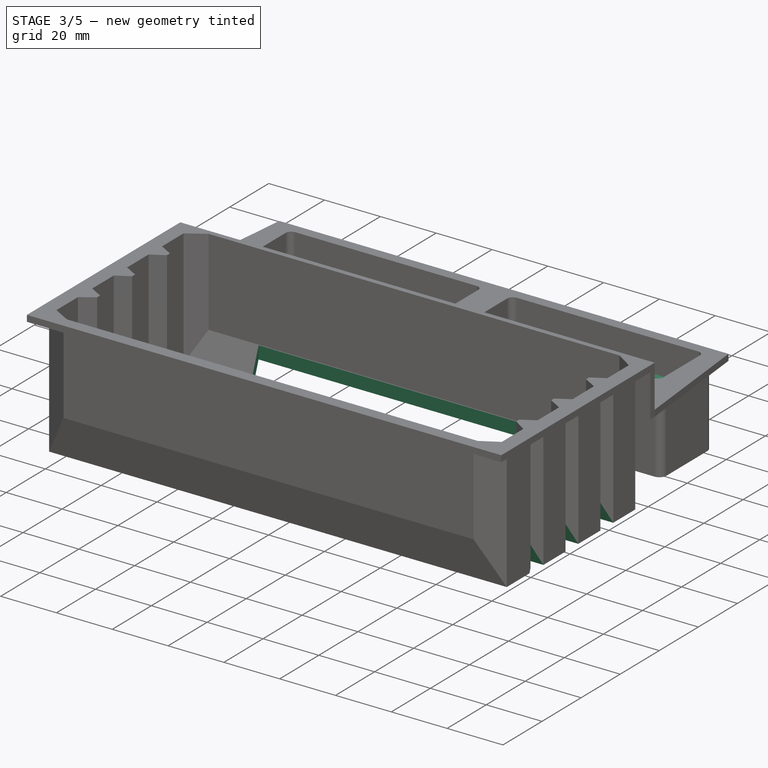
[diagram: stage 3 of 5 — iso view after this stage's code; geometry added in this stage tinted green]
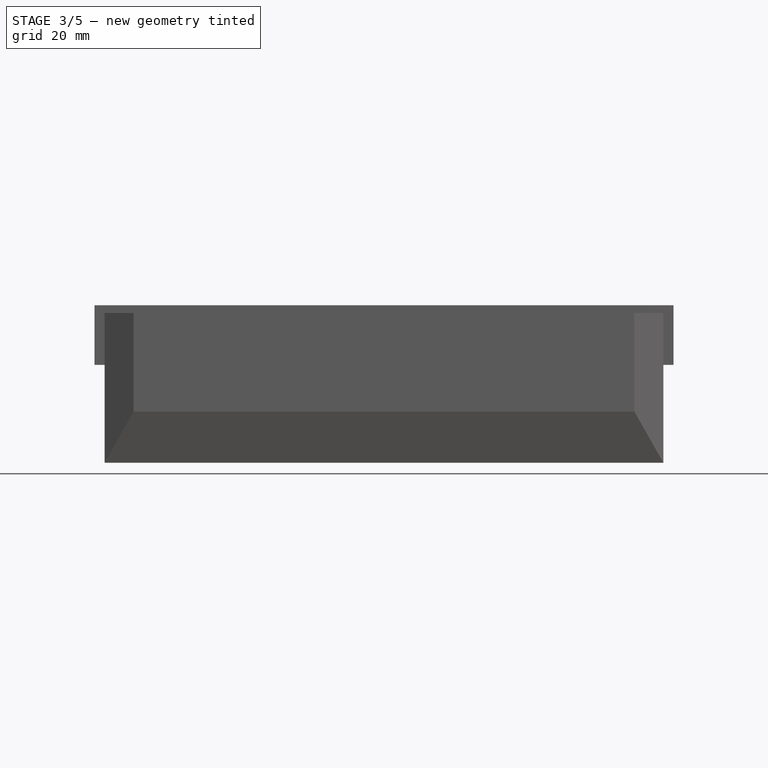
[diagram: stage 3 of 5 — front view after this stage's code; geometry added in this stage tinted green]
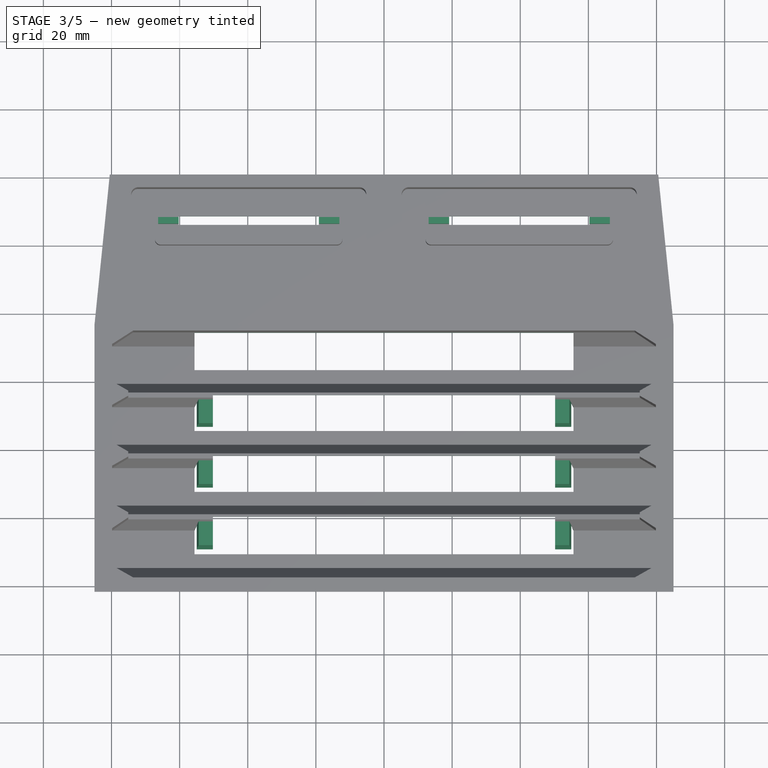
[diagram: stage 3 of 5 — top view after this stage's code; geometry added in this stage tinted green]
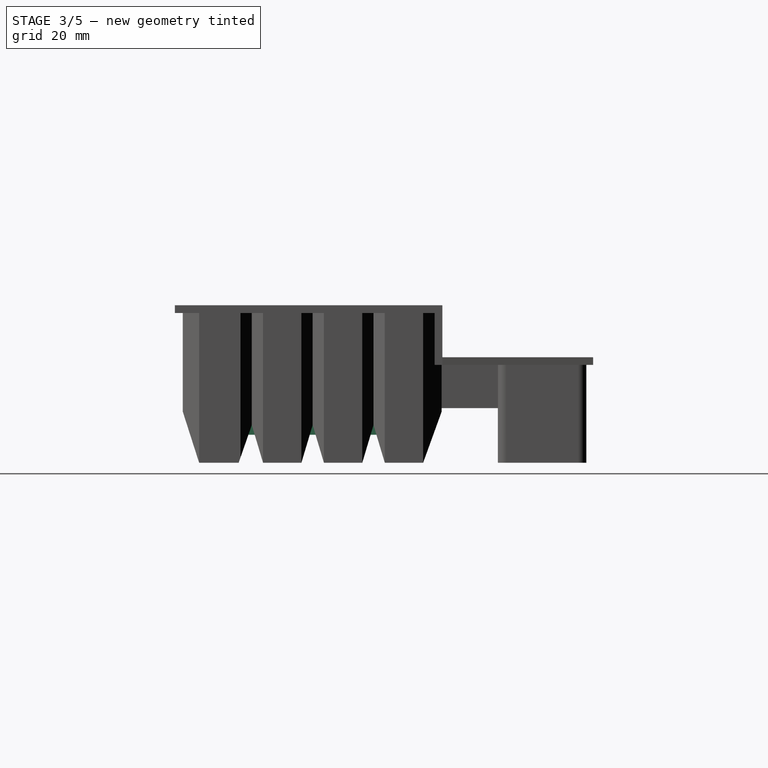
[diagram: stage 3 of 5 — right view after this stage's code; geometry added in this stage tinted green]
FEATURE [Sketcher::SketchObject] Sketch011
  ArcFitTolerance = 1e-06
  AttachmentSupport = -> [Pocket005]
  ExternalGeometry = -> [Pocket005]
  FullyConstrained = true
  MakeInternals = false
  MapMode = 5
  Placement = pos=(0,0,-9.27e-14) rot=(0.707107,0.707107,0;3.14159rad)
  sketch-geometry (28):
    g0: LineSegment StartX=6.4 StartY=80.4 StartZ=0 EndX=6.4 EndY=-80.4 EndZ=0
    g1: LineSegment StartX=6.4 StartY=-80.4 StartZ=0 EndX=15.3667 EndY=-80.4 EndZ=0
    g2: LineSegment StartX=15.3667 StartY=-80.4 StartZ=0 EndX=15.3667 EndY=80.4 EndZ=0
    g3: LineSegment StartX=15.3667 StartY=80.4 StartZ=0 EndX=6.4 EndY=80.4 EndZ=0
    g4: LineSegment StartX=25.1667 StartY=80.4 StartZ=0 EndX=25.1667 EndY=-80.4 EndZ=0
    g5: LineSegment StartX=25.1667 StartY=-80.4 StartZ=0 EndX=33.2333 EndY=-80.4 EndZ=0
    g6: LineSegment StartX=33.2333 StartY=-80.4 StartZ=0 EndX=33.2333 EndY=80.4 EndZ=0
    g7: LineSegment StartX=33.2333 StartY=80.4 StartZ=0 EndX=25.1667 EndY=80.4 EndZ=0
    g8: LineSegment StartX=43.0333 StartY=80.4 StartZ=0 EndX=43.0333 EndY=-80.4 EndZ=0
    g9: LineSegment StartX=43.0333 StartY=-80.4 StartZ=0 EndX=51.1 EndY=-80.4 EndZ=0
    g10: LineSegment StartX=51.1 StartY=-80.4 StartZ=0 EndX=51.1 EndY=80.4 EndZ=0
    g11: LineSegment StartX=51.1 StartY=80.4 StartZ=0 EndX=43.0333 EndY=80.4 EndZ=0
    g12: LineSegment StartX=60.9 StartY=80.4 StartZ=0 EndX=60.9 EndY=-80.4 EndZ=0
    g13: LineSegment StartX=60.9 StartY=-80.4 StartZ=0 EndX=68.9667 EndY=-80.4 EndZ=0
    g14: LineSegment StartX=68.9667 StartY=-80.4 StartZ=0 EndX=68.9667 EndY=80.4 EndZ=0
    g15: LineSegment StartX=68.9667 StartY=80.4 StartZ=0 EndX=60.9 EndY=80.4 EndZ=0
    g16: GeomPoint [constr] X=10.8833 Y=82 Z=0
    g17: GeomPoint [constr] X=29.2 Y=82 Z=0
    g18: GeomPoint [constr] X=47.0667 Y=82 Z=0
    g19: GeomPoint [constr] X=64.9333 Y=82 Z=0
    g20: GeomPoint [constr] X=10.8833 Y=-82 Z=0
    g21: GeomPoint [constr] X=29.2 Y=-82 Z=0
    g22: GeomPoint [constr] X=47.0667 Y=-82 Z=0
    g23: GeomPoint [constr] X=64.9333 Y=-82 Z=0
    g24: LineSegment [constr] StartX=10.8833 StartY=80.4 StartZ=0 EndX=10.8833 EndY=-82 EndZ=0
    g25: LineSegment [constr] StartX=29.2 StartY=82 StartZ=0 EndX=29.2 EndY=-82 EndZ=0
    g26: LineSegment [constr] StartX=47.0667 StartY=82 StartZ=0 EndX=47.0667 EndY=-82 EndZ=0
    g27: LineSegment [constr] StartX=64.9333 StartY=82 StartZ=0 EndX=64.9333 EndY=-82 EndZ=0
  constraints (61):
    c: Coincident(g0,g1)
    c: Coincident(g1,g2)
    c: Coincident(g2,g3)
    c: Coincident(g3,g0)
    c: Vertical(g0)
    c: Vertical(g2)
    c: Horizontal(g1)
    c: Horizontal(g3)
    c: Coincident(g4,g5)
    c: Coincident(g5,g6)
    c: Coincident(g6,g7)
    c: Coincident(g7,g4)
    c: Vertical(g4)
    c: Vertical(g6)
    c: Horizontal(g5)
    c: Coincident(g8,g9)
    c: Coincident(g9,g10)
    c: Coincident(g10,g11)
    c: Coincident(g11,g8)
    c: Vertical(g8)
    c: Vertical(g10)
    c: Horizontal(g9)
    c: Coincident(g12,g13)
    c: Coincident(g13,g14)
    c: Coincident(g14,g15)
    c: Coincident(g15,g12)
    c: Vertical(g12)
    c: Vertical(g14)
    c: Horizontal(g13)
    c: Horizontal(g1,g4)
    c: Horizontal(g5,g8)
    c: Horizontal(g9,g12)
    c: Horizontal(g12,g10)
    c: Horizontal(g8,g6)
    c: Horizontal(g4,g2)
    c: DistanceY(g0,g-3) = 1.6
    c: DistanceX(g-3,g0) = 1.6
    c: Symmetric(g-3,g-3,g16)
    c: Symmetric(g-4,g-4,g17)
    c: Symmetric(g-5,g-5,g18)
    c: Symmetric(g-6,g-6,g19)
    c: Symmetric(g-10,g-10,g20)
    c: Symmetric(g-9,g-9,g21)
    c: Symmetric(g-8,g-8,g22)
    c: Symmetric(g-7,g-7,g23)
    c: Symmetric(g3,g3,g24)
    c: Coincident(g24,g20)
    c: Vertical(g24)
    c: Coincident(g25,g17)
    c: Coincident(g25,g21)
    c: Coincident(g26,g18)
    c: Coincident(g26,g22)
    c: Coincident(g27,g19)
    c: Coincident(g27,g23)
    c: Symmetric(g6,g4,g25)
    c: Symmetric(g8,g10,g26)
    c: Symmetric(g12,g14,g27)
    c: DistanceX(g-4,g4) = 1.6
    c: DistanceX(g-5,g8) = 1.6
    c: DistanceX(g14,g-6) = 1.6
    c: DistanceY(g-10,g0) = 1.6
FEATURE [PartDesign::Pocket] Pocket006
  BaseFeature = -> Pocket005
  Direction = (-3.7e-15,1.2e-15,1)
  Length = 2
  Length2 = 5
  Placement = pos=(0,0,0) rot=(1,1,1;2.0944rad)
  Profile = -> Sketch011
  ReferenceAxis = -> Sketch011 [N_Axis]
  Suppressed = false
  Type = 0
FEATURE [Sketcher::SketchObject] Sketch012
  ArcFitTolerance = 1e-06
  AttachmentSupport = -> [Pocket006]
  ExternalGeometry = -> [Pocket006]
  FullyConstrained = true
  MakeInternals = false
  MapMode = 5
  Placement = pos=(-82,2.003e-13,-1.275e-13) rot=(-0.57735,-0.57735,0.57735;2.0944rad)
  sketch-geometry (12):
    g0: LineSegment StartX=16.4133 StartY=7.64e-14 StartZ=0 EndX=20.2667 EndY=-11.0683 EndZ=0
    g1: LineSegment StartX=20.2667 StartY=-11.0683 StartZ=0 EndX=23.5667 EndY=7.64e-14 EndZ=0
    g2: LineSegment StartX=23.5667 StartY=7.64e-14 StartZ=0 EndX=16.4133 EndY=7.64e-14 EndZ=0
    g3: LineSegment StartX=34.8333 StartY=1.208e-13 StartZ=0 EndX=38.1333 EndY=-11.0683 EndZ=0
    g4: LineSegment StartX=38.1333 StartY=-11.0683 StartZ=0 EndX=41.4333 EndY=1.208e-13 EndZ=0
    g5: LineSegment StartX=41.4333 StartY=1.208e-13 StartZ=0 EndX=34.8333 EndY=1.208e-13 EndZ=0
    g6: LineSegment StartX=52.7 StartY=1.918e-13 StartZ=0 EndX=56 EndY=-11.0683 EndZ=0
    g7: LineSegment StartX=56 StartY=-11.0683 StartZ=0 EndX=59.3 EndY=1.918e-13 EndZ=0
    g8: LineSegment StartX=59.3 StartY=1.918e-13 StartZ=0 EndX=52.7 EndY=1.918e-13 EndZ=0
    g9: GeomPoint [constr] X=20.2667 Y=-13.2 Z=0
    g10: GeomPoint [constr] X=38.1333 Y=-13.2 Z=0
    g11: GeomPoint [constr] X=56 Y=-13.2 Z=0
  constraints (29):
    c: Coincident(g0,g1)
    c: Coincident(g1,g2)
    c: Horizontal(g2)
    c: Coincident(g3,g4)
    c: Coincident(g4,g5)
    c: Coincident(g5,g3)
    c: Coincident(g6,g7)
    c: Coincident(g7,g8)
    c: Coincident(g8,g6)
    c: Coincident(g0,g2)
    c: PointOnObject(g3,g-9)
    c: PointOnObject(g6,g-9)
    c: Horizontal(g5)
    c: Horizontal(g8)
    c: Parallel(g-3,g0)
    c: Parallel(g-4,g1)
    c: Parallel(g3,g-5)
    c: Parallel(g6,g-7)
    c: Parallel(g4,g-6)
    c: Parallel(g7,g-8)
    c: Symmetric(g-4,g-3,g9)
    c: Symmetric(g-5,g-6,g10)
    c: Symmetric(g-7,g-8,g11)
    c: Vertical(g0,g9)
    c: Vertical(g3,g10)
    c: Vertical(g6,g11)
    c: Horizontal(g0,g3)
    c: Horizontal(g0,g6)
    c: Coincident(g1,g-9)
FEATURE [PartDesign::Pocket] Pocket007
  BaseFeature = -> Pocket006
  Direction = (1,-2.4e-15,1.6e-15)
  Length = 5
  Length2 = 5
  Placement = pos=(0,0,0) rot=(1,1,1;2.0944rad)
  Profile = -> Sketch012
  ReferenceAxis = -> Sketch012 [N_Axis]
  Suppressed = false
  Type = 1
FEATURE [Sketcher::SketchObject] Sketch013
  ArcFitTolerance = 1e-06
  AttachmentSupport = -> [Pocket007]
  ExternalGeometry = -> [Pocket007]
  FullyConstrained = true
  MakeInternals = false
  MapMode = 5
  Placement = pos=(0,0,-1.096e-13) rot=(0.707107,0.707107,0;3.14159rad)
  sketch-geometry (48):
    g0: LineSegment StartX=9.41667 StartY=55.625 StartZ=0 EndX=9.41667 EndY=-55.625 EndZ=0
    g1: LineSegment StartX=20.2667 StartY=-50.225 StartZ=0 EndX=20.2667 EndY=50.225 EndZ=0
    g2: LineSegment StartX=27.7333 StartY=55.625 StartZ=0 EndX=27.7333 EndY=-55.625 EndZ=0
    g3: LineSegment StartX=38.1333 StartY=-50.225 StartZ=0 EndX=38.1333 EndY=50.225 EndZ=0
    g4: LineSegment StartX=45.6 StartY=55.625 StartZ=0 EndX=45.6 EndY=-55.625 EndZ=0
    g5: LineSegment StartX=56 StartY=-50.225 StartZ=0 EndX=56 EndY=50.225 EndZ=0
    g6: LineSegment StartX=74.3167 StartY=55.625 StartZ=0 EndX=63.4667 EndY=55.625 EndZ=0
    g7: LineSegment StartX=63.4667 StartY=55.625 StartZ=0 EndX=63.4667 EndY=-55.625 EndZ=0
    g8: LineSegment StartX=63.4667 StartY=-55.625 StartZ=0 EndX=74.3167 EndY=-55.625 EndZ=0
    g9: LineSegment StartX=74.3167 StartY=-55.625 StartZ=0 EndX=74.3167 EndY=55.625 EndZ=0
    g10: LineSegment [constr] StartX=20.2667 StartY=50.225 StartZ=0 EndX=27.7333 EndY=55.625 EndZ=0
    g11: LineSegment [constr] StartX=56 StartY=50.225 StartZ=0 EndX=63.4667 EndY=55.625 EndZ=0
    g12: LineSegment StartX=16.3833 StartY=55.625 StartZ=0 EndX=9.41667 EndY=55.625 EndZ=0
    g13: LineSegment StartX=34.7 StartY=55.625 StartZ=0 EndX=27.7333 EndY=55.625 EndZ=0
    g14: LineSegment StartX=52.5667 StartY=55.625 StartZ=0 EndX=45.6 EndY=55.625 EndZ=0
    g15: LineSegment StartX=45.6 StartY=-55.625 StartZ=0 EndX=52.5667 EndY=-55.625 EndZ=0
    g16: LineSegment StartX=27.7333 StartY=-55.625 StartZ=0 EndX=34.7 EndY=-55.625 EndZ=0
    g17: LineSegment StartX=9.41667 StartY=-55.625 StartZ=0 EndX=16.3833 EndY=-55.625 EndZ=0
    g18: LineSegment StartX=56 StartY=50.225 StartZ=0 EndX=55.15 EndY=50.225 EndZ=0
    g19: LineSegment StartX=55.15 StartY=50.225 StartZ=0 EndX=55.15 EndY=54.225 EndZ=0
    g20: LineSegment StartX=55.15 StartY=54.225 StartZ=0 EndX=52.5667 EndY=55.625 EndZ=0
    g21: LineSegment StartX=37.2833 StartY=54.225 StartZ=0 EndX=34.7 EndY=55.625 EndZ=0
    g22: LineSegment StartX=38.1333 StartY=50.225 StartZ=0 EndX=37.2833 EndY=50.225 EndZ=0
    g23: LineSegment StartX=37.2833 StartY=50.225 StartZ=0 EndX=37.2833 EndY=54.225 EndZ=0
    g24: LineSegment StartX=19.4167 StartY=54.225 StartZ=0 EndX=16.3833 EndY=55.625 EndZ=0
    g25: LineSegment StartX=20.2667 StartY=50.225 StartZ=0 EndX=19.4167 EndY=50.225 EndZ=0
    g26: LineSegment StartX=19.4167 StartY=50.225 StartZ=0 EndX=19.4167 EndY=54.225 EndZ=0
    g27: LineSegment StartX=52.5667 StartY=-55.625 StartZ=0 EndX=55.15 EndY=-54.225 EndZ=0
    g28: LineSegment StartX=55.15 StartY=-54.225 StartZ=0 EndX=55.15 EndY=-50.225 EndZ=0
    g29: LineSegment StartX=55.15 StartY=-50.225 StartZ=0 EndX=56 EndY=-50.225 EndZ=0
    g30: LineSegment StartX=34.7 StartY=-55.625 StartZ=0 EndX=37.2833 EndY=-54.225 EndZ=0
    g31: LineSegment StartX=37.2833 StartY=-54.225 StartZ=0 EndX=37.2833 EndY=-50.225 EndZ=0
    g32: LineSegment StartX=37.2833 StartY=-50.225 StartZ=0 EndX=38.1333 EndY=-50.225 EndZ=0
    g33: LineSegment StartX=16.3833 StartY=-55.625 StartZ=0 EndX=19.4167 EndY=-54.225 EndZ=0
    g34: LineSegment StartX=19.4167 StartY=-54.225 StartZ=0 EndX=19.4167 EndY=-50.225 EndZ=0
    g35: LineSegment StartX=19.4167 StartY=-50.225 StartZ=0 EndX=20.2667 EndY=-50.225 EndZ=0
    g36: LineSegment StartX=105.875 StartY=-19.1 StartZ=0 EndX=105.875 EndY=-60.3 EndZ=0
    g37: LineSegment StartX=105.875 StartY=-60.3 StartZ=0 EndX=108.375 EndY=-60.3 EndZ=0
    g38: LineSegment StartX=108.375 StartY=-60.3 StartZ=0 EndX=108.375 EndY=-19.1 EndZ=0
    g39: LineSegment StartX=108.375 StartY=-19.1 StartZ=0 EndX=105.875 EndY=-19.1 EndZ=0
    g40: GeomPoint [constr] X=108.375 Y=-39.7 Z=0
    g41: GeomPoint [constr] X=112.375 Y=-39.7 Z=0
    g42: LineSegment StartX=105.875 StartY=60.3 StartZ=0 EndX=105.875 EndY=19.1 EndZ=0
    g43: LineSegment StartX=105.875 StartY=19.1 StartZ=0 EndX=108.375 EndY=19.1 EndZ=0
    g44: LineSegment StartX=108.375 StartY=19.1 StartZ=0 EndX=108.375 EndY=60.3 EndZ=0
    g45: LineSegment StartX=108.375 StartY=60.3 StartZ=0 EndX=105.875 EndY=60.3 EndZ=0
    g46: GeomPoint [constr] X=112.375 Y=39.7 Z=0
    g47: GeomPoint [constr] X=108.375 Y=39.7 Z=0
  constraints (132):
    c: Coincident(g0,g17)
    c: Coincident(g35,g1)
    c: Coincident(g1,g25)
    c: Coincident(g12,g0)
    c: Distance(g17,g12) = 111.25
    c: Symmetric(g0,g0,g-1)
    c: Coincident(g13,g2)
    c: Coincident(g2,g16)
    c: Coincident(g32,g3)
    c: Coincident(g3,g22)
    c: Vertical(g2)
    c: Vertical(g3)
    c: PointOnObject(g22,g-4)
    c: Coincident(g14,g4)
    c: Coincident(g4,g15)
    c: Coincident(g29,g5)
    c: Coincident(g5,g18)
    c: Vertical(g4)
    c: Vertical(g5)
    c: PointOnObject(g18,g-5)
    c: Coincident(g6,g7)
    c: Coincident(g7,g8)
    c: Coincident(g8,g9)
    c: Coincident(g9,g6)
    c: Horizontal(g6)
    c: Horizontal(g8)
    c: Vertical(g7)
    c: Vertical(g9)
    c: Coincident(g10,g1)
    c: Coincident(g10,g13)
    c: Coincident(g11,g18)
    c: Coincident(g11,g6)
    c: Equal(g10,g11)
    c: Coincident(g24,g12)
    c: Coincident(g21,g13)
    c: Horizontal(g13)
    c: Coincident(g20,g14)
    c: Horizontal(g14)
    c: Coincident(g15,g27)
    c: Horizontal(g15)
    c: Coincident(g16,g30)
    c: Horizontal(g16)
    c: Coincident(g17,g33)
    c: Horizontal(g17)
    c: PointOnObject(g1,g-3)
    c: DistanceX(g0,g1) = 10.85
    c: Horizontal(g1,g3)
    c: Horizontal(g3,g5)
    c: Horizontal(g24,g2)
    c: Horizontal(g21,g4)
    c: Horizontal(g20,g6)
    c: Horizontal(g12)
    c: PointOnObject(g17,g-6)
    c: PointOnObject(g16,g-9)
    c: PointOnObject(g15,g-14)
    c: Symmetric(g1,g1,g-1)
    c: Horizontal(g4,g2)
    c: Horizontal(g2,g0)
    c: Equal(g16,g17)
    c: Equal(g15,g16)
    c: DistanceX(g6,g6) = 10.85
    c: Horizontal(g3,g1)
    c: Horizontal(g5,g3)
    c: PointOnObject(g20,g-14)
    c: PointOnObject(g21,g-9)
    c: PointOnObject(g24,g-6)
    c: Horizontal(g7,g15)
    c: DistanceY(g5,g20) = 5.4
    c: Coincident(g18,g19)
    c: Coincident(g19,g20)
    c: Vertical(g19)
    c: Horizontal(g18,g5)
    c: DistanceY(g19,g19) = 4
    c: DistanceX(g18,g5) = 0.85
    c: Coincident(g23,g21)
    c: Coincident(g22,g23)
    c: Horizontal(g22)
    c: Vertical(g23)
    c: Horizontal(g21,g19)
    c: Equal(g18,g22)
    c: Coincident(g26,g24)
    c: Coincident(g25,g26)
    c: Horizontal(g25)
    c: Vertical(g26)
    c: Horizontal(g24,g21)
    c: Equal(g25,g18)
    c: Coincident(g27,g28)
    c: Coincident(g28,g29)
    c: Coincident(g30,g31)
    c: Coincident(g31,g32)
    c: Coincident(g33,g34)
    c: Coincident(g34,g35)
    c: Horizontal(g29)
    c: Vertical(g28)
    c: Vertical(g18,g28)
    c: Equal(g28,g19)
    c: Horizontal(g32)
    c: Vertical(g31)
    c: Horizontal(g30,g27)
    c: Equal(g32,g29)
    c: Horizontal(g35)
    c: Vertical(g34)
    c: Horizontal(g33,g30)
    c: Equal(g29,g35)
    c: Coincident(g36,g37)
    c: Coincident(g37,g38)
    c: Coincident(g38,g39)
    c: Coincident(g39,g36)
    c: Vertical(g36)
    c: Vertical(g38)
    c: Horizontal(g37)
    c: Horizontal(g39)
    c: Distance(g36,g38) = 2.5
    c: Distance(g37,g39) = 41.2
    c: DistanceX(g38,g-15) = 4
    c: Symmetric(g38,g38,g40)
    c: Symmetric(g-15,g-15,g41)
    c: Horizontal(g40,g41)
    c: Coincident(g42,g43)
    c: Coincident(g43,g44)
    c: Coincident(g44,g45)
    c: Coincident(g45,g42)
    c: Vertical(g42)
    c: Vertical(g44)
    c: Horizontal(g43)
    c: Horizontal(g45)
    c: Equal(g43,g39)
    c: Equal(g38,g44)
    c: Symmetric(g-16,g-16,g46)
    c: Symmetric(g44,g44,g47)
    c: Horizontal(g47,g46)
    c: Vertical(g43,g38)
FEATURE [PartDesign::Pocket] Pocket008
  BaseFeature = -> Pocket007
  Direction = (-4.3e-15,1.4e-15,1)
  Length = 5
  Length2 = 5
  Placement = pos=(0,0,0) rot=(1,1,1;2.0944rad)
  Profile = -> Sketch013
  ReferenceAxis = -> Sketch013 [N_Axis]
  Suppressed = false
  Type = 1
FEATURE [Sketcher::SketchObject] Sketch014
  ArcFitTolerance = 1e-06
  AttachmentSupport = -> [Pocket008]
  ExternalGeometry = -> [Pocket008]
  FullyConstrained = true
  MakeInternals = false
  MapMode = 5
  Placement = pos=(-9.24e-14,1e-14,18.05) rot=(0,0,-1;1.5708rad)
  sketch-geometry (18):
    g0: LineSegment StartX=-108.075 StartY=-19.1 StartZ=0 EndX=-106.175 EndY=-19.1 EndZ=0
    g1: LineSegment StartX=-106.175 StartY=-19.1 StartZ=0 EndX=-106.175 EndY=-13.1 EndZ=0
    g2: LineSegment StartX=-106.175 StartY=-13.1 StartZ=0 EndX=-108.075 EndY=-13.1 EndZ=0
    g3: LineSegment StartX=-108.075 StartY=-13.1 StartZ=0 EndX=-108.075 EndY=-19.1 EndZ=0
    g4: GeomPoint [constr] X=-107.125 Y=-19.1 Z=0
    g5: GeomPoint [constr] X=-107.125 Y=-60.3 Z=0
    g6: LineSegment StartX=-108.075 StartY=-60.3 StartZ=0 EndX=-108.075 EndY=-66.3 EndZ=0
    g7: LineSegment StartX=-108.075 StartY=-66.3 StartZ=0 EndX=-106.175 EndY=-66.3 EndZ=0
    g8: LineSegment StartX=-106.175 StartY=-66.3 StartZ=0 EndX=-106.175 EndY=-60.3 EndZ=0
    g9: LineSegment StartX=-106.175 StartY=-60.3 StartZ=0 EndX=-108.075 EndY=-60.3 EndZ=0
    g10: LineSegment StartX=-108.075 StartY=19.1 StartZ=0 EndX=-108.075 EndY=13.1 EndZ=0
    g11: LineSegment StartX=-108.075 StartY=13.1 StartZ=0 EndX=-106.175 EndY=13.1 EndZ=0
    g12: LineSegment StartX=-106.175 StartY=13.1 StartZ=0 EndX=-106.175 EndY=19.1 EndZ=0
    g13: LineSegment StartX=-106.175 StartY=19.1 StartZ=0 EndX=-108.075 EndY=19.1 EndZ=0
    g14: LineSegment StartX=-108.075 StartY=66.3 StartZ=0 EndX=-108.075 EndY=60.3 EndZ=0
    g15: LineSegment StartX=-108.075 StartY=60.3 StartZ=0 EndX=-106.175 EndY=60.3 EndZ=0
    g16: LineSegment StartX=-106.175 StartY=60.3 StartZ=0 EndX=-106.175 EndY=66.3 EndZ=0
    g17: LineSegment StartX=-106.175 StartY=66.3 StartZ=0 EndX=-108.075 EndY=66.3 EndZ=0
  constraints (50):
    c: Coincident(g0,g1)
    c: Coincident(g1,g2)
    c: Coincident(g2,g3)
    c: Coincident(g3,g0)
    c: Horizontal(g0)
    c: Horizontal(g2)
    c: Vertical(g1)
    c: Vertical(g3)
    c: Distance(g1,g3) = 1.9
    c: Distance(g0,g2) = 6
    c: PointOnObject(g0,g-5)
    c: Symmetric(g0,g0,g4)
    c: Symmetric(g-6,g-6,g5)
    c: Vertical(g4,g5)
    c: Coincident(g6,g7)
    c: Coincident(g7,g8)
    c: Coincident(g8,g9)
    c: Coincident(g9,g6)
    c: Vertical(g6)
    c: Vertical(g8)
    c: Horizontal(g7)
    c: Horizontal(g9)
    c: Equal(g6,g3)
    c: Vertical(g6,g0)
    c: Vertical(g8,g0)
    c: PointOnObject(g6,g-6)
    c: Coincident(g10,g11)
    c: Coincident(g11,g12)
    c: Coincident(g12,g13)
    c: Coincident(g13,g10)
    c: Vertical(g10)
    c: Vertical(g12)
    c: Horizontal(g11)
    c: Horizontal(g13)
    c: Equal(g3,g10)
    c: Vertical(g10,g2)
    c: Vertical(g11,g1)
    c: PointOnObject(g10,g-3)
    c: Coincident(g14,g15)
    c: Coincident(g15,g16)
    c: Coincident(g16,g17)
    c: Coincident(g17,g14)
    c: Vertical(g14)
    c: Vertical(g16)
    c: Horizontal(g15)
    c: Horizontal(g17)
    c: Equal(g14,g10)
    c: Vertical(g14,g10)
    c: Vertical(g15,g12)
    c: PointOnObject(g14,g-4)
FEATURE [PartDesign::Pad] Pad007
  BaseFeature = -> Pocket008
  Direction = (-5.1e-15,0,1)
  Length = 6.3
  Length2 = 10
  Placement = pos=(0,0,0) rot=(1,1,1;2.0944rad)
  Profile = -> Sketch014
  ReferenceAxis = -> Sketch014 [N_Axis]
  Refine = true
  Suppressed = false
  Type = 0
FEATURE [PartDesign::Plane] DatumPlane
  AttachmentOffset = pos=(0,0,-8.2) rot=(0,0,1;0rad)
  AttachmentSupport = -> [Pad007]
  Length = 176.899
  MapMode = 5
  Placement = pos=(-4.1e-14,1.37e-14,8.2) rot=(0.707107,0.707107,0;3.14159rad)
  ResizeMode = 0
  Width = 201.449
FEATURE [PartDesign::Plane] DatumPlane001
  AttachmentOffset = pos=(0,0,-11.95) rot=(0,0,1;0rad)
  AttachmentSupport = -> [Pad007]
  Length = 176.899
  MapMode = 5
  Placement = pos=(-5.97e-14,1.99e-14,11.95) rot=(0.707107,0.707107,0;3.14159rad)
  ResizeMode = 0
  Width = 201.449
FEATURE [PartDesign::Plane] DatumPlane002
  AttachmentOffset = pos=(0,0,57) rot=(0,0,1;0rad)
  AttachmentSupport = -> [Sketch013]
  Length = 192.004
  MapMode = 4
  Placement = pos=(0,57,-1.887e-13) rot=(-1,0,0;1.5708rad)
  ResizeMode = 0
  Width = 93.2036
FEATURE [Sketcher::SketchObject] Sketch016
  ArcFitTolerance = 1e-06
  AttachmentSupport = -> [DatumPlane002]
  ExternalGeometry = -> [Pad007]
  FullyConstrained = true
  MakeInternals = false
  MapMode = 5
  Placement = pos=(0,57,-1.887e-13) rot=(-1,0,0;1.5708rad)
  sketch-geometry (8):
    g0: LineSegment StartX=-54.225 StartY=-12.8646 StartZ=0 EndX=-54.9759 EndY=-8.21739 EndZ=0
    g1: LineSegment StartX=-54.9759 StartY=-8.21739 StartZ=0 EndX=-50.225 EndY=-8.21739 EndZ=0
    g2: LineSegment StartX=-50.225 StartY=-8.21739 StartZ=0 EndX=-50.225 EndY=-12.8646 EndZ=0
    g3: LineSegment StartX=-50.225 StartY=-12.8646 StartZ=0 EndX=-54.225 EndY=-12.8646 EndZ=0
    g4: LineSegment StartX=50.225 StartY=-8.21739 StartZ=0 EndX=54.9759 EndY=-8.21739 EndZ=0
    g5: LineSegment StartX=54.9759 StartY=-8.21739 StartZ=0 EndX=54.225 EndY=-12.8646 EndZ=0
    g6: LineSegment StartX=54.225 StartY=-12.8646 StartZ=0 EndX=50.225 EndY=-12.8646 EndZ=0
    g7: LineSegment StartX=50.225 StartY=-12.8646 StartZ=0 EndX=50.225 EndY=-8.21739 EndZ=0
  constraints (22):
    c: PointOnObject(g0,g-7)
    c: Coincident(g0,g1)
    c: Coincident(g1,g-4)
    c: Coincident(g1,g2)
    c: Coincident(g3,g0)
    c: Horizontal(g1)
    c: PointOnObject(g0,g-7)
    c: Vertical(g2)
    c: Coincident(g3,g2)
    c: Horizontal(g3)
    c: Coincident(g-3,g4)
    c: PointOnObject(g4,g-8)
    c: Horizontal(g4)
    c: Coincident(g4,g5)
    c: PointOnObject(g5,g-8)
    c: Coincident(g5,g6)
    c: Horizontal(g6)
    c: Coincident(g6,g7)
    c: Coincident(g7,g4)
    c: Vertical(g7)
    c: Horizontal(g2,g6)
    c: PointOnObject(g2,g-5)
FEATURE [PartDesign::Pad] Pad008
  BaseFeature = -> Pad007
  Direction = (0,1,-1.4e-15)
  Length = 50
  Length2 = 10
  Placement = pos=(0,0,0) rot=(1,1,1;2.0944rad)
  Profile = -> Sketch016
  ReferenceAxis = -> Sketch016 [N_Axis]
  Refine = true
  Reversed = true
  Suppressed = false
  Type = 0
FEATURE [Sketcher::SketchObject] Sketch017
  ArcFitTolerance = 1e-06
  AttachmentSupport = -> [YZ_Plane]
  ExternalGeometry = -> [Pad008]
  FullyConstrained = true
  MakeInternals = false
  MapMode = 5
  Placement = pos=(0,0,0) rot=(0.57735,0.57735,0.57735;2.0944rad)
  sketch-geometry (21):
    g0: LineSegment StartX=54.773 StartY=11.6 StartZ=0 EndX=47.773 EndY=11.6 EndZ=0
    g1: LineSegment StartX=47.773 StartY=11.6 StartZ=0 EndX=46.6698 EndY=7.9 EndZ=0
    g2: LineSegment StartX=46.6698 StartY=7.9 StartZ=0 EndX=40.4635 EndY=7.9 EndZ=0
    g3: LineSegment StartX=40.4635 StartY=7.9 StartZ=0 EndX=38.8833 EndY=13.2 EndZ=0
    g4: LineSegment StartX=38.8833 StartY=13.2 StartZ=0 EndX=37.3833 EndY=13.2 EndZ=0
    g5: LineSegment StartX=37.3833 StartY=13.2 StartZ=0 EndX=36.9063 EndY=11.6 EndZ=0
    g6: LineSegment StartX=36.9063 StartY=11.6 StartZ=0 EndX=29.9063 EndY=11.6 EndZ=0
    g7: LineSegment StartX=29.9063 StartY=11.6 StartZ=0 EndX=28.8031 EndY=7.9 EndZ=0
    g8: LineSegment StartX=28.8031 StartY=7.9 StartZ=0 EndX=22.5969 EndY=7.9 EndZ=0
    g9: LineSegment StartX=22.5969 StartY=7.9 StartZ=0 EndX=21.0167 EndY=13.2 EndZ=0
    g10: LineSegment StartX=21.0167 StartY=13.2 StartZ=0 EndX=19.5167 EndY=13.2 EndZ=0
    g11: LineSegment StartX=19.5167 StartY=13.2 StartZ=0 EndX=18.9596 EndY=11.6 EndZ=0
    g12: LineSegment StartX=18.9596 StartY=11.6 StartZ=0 EndX=11.9596 EndY=11.6 EndZ=0
    g13: LineSegment StartX=11.9596 StartY=11.6 StartZ=0 EndX=10.6715 EndY=7.9 EndZ=0
    g14: LineSegment StartX=10.6715 StartY=7.9 StartZ=0 EndX=4.19933 EndY=7.9 EndZ=0
    g15: LineSegment StartX=4.19933 StartY=7.9 StartZ=0 EndX=1.88887 EndY=15.1202 EndZ=0
    g16: LineSegment StartX=1.88887 StartY=15.1202 StartZ=0 EndX=57.227 EndY=15.1202 EndZ=0
    g17: LineSegment StartX=55.25 StartY=13.2 StartZ=0 EndX=54.773 EndY=11.6 EndZ=0
    g18: LineSegment StartX=56.75 StartY=13.2 StartZ=0 EndX=55.25 EndY=13.2 EndZ=0
    g19: LineSegment StartX=57.227 StartY=15.1202 StartZ=0 EndX=57.227 EndY=11.6 EndZ=0
    g20: LineSegment StartX=57.227 StartY=11.6 StartZ=0 EndX=56.75 EndY=13.2 EndZ=0
  constraints (56):
    c: PointOnObject(g17,g-3)
    c: Coincident(g17,g0)
    c: Horizontal(g0)
    c: Coincident(g0,g1)
    c: Coincident(g1,g2)
    c: PointOnObject(g2,g-7)
    c: Coincident(g2,g3)
    c: Coincident(g3,g-7)
    c: Coincident(g3,g4)
    c: Coincident(g4,g-4)
    c: Coincident(g4,g5)
    c: PointOnObject(g5,g-4)
    c: Coincident(g5,g6)
    c: Horizontal(g6)
    c: Coincident(g6,g7)
    c: Coincident(g7,g8)
    c: PointOnObject(g8,g-6)
    c: Horizontal(g8)
    c: Coincident(g8,g9)
    c: Coincident(g9,g-6)
    c: Coincident(g9,g10)
    c: Coincident(g10,g-5)
    c: Coincident(g10,g11)
    c: PointOnObject(g11,g-5)
    c: Coincident(g11,g12)
    c: Horizontal(g12)
    c: Coincident(g12,g13)
    c: Coincident(g13,g14)
    c: PointOnObject(g14,g-9)
    c: Horizontal(g14)
    c: Coincident(g14,g15)
    c: Coincident(g15,g-9)
    c: Coincident(g15,g16)
    c: Horizontal(g16)
    c: Coincident(g19,g16)
    c: Parallel(g1,g-3)
    c: Parallel(g7,g-4)
    c: Parallel(g13,g-5)
    c: Horizontal(g13,g8)
    c: Horizontal(g7,g2)
    c: Horizontal(g2)
    c: Horizontal(g11,g6)
    c: Horizontal(g5,g0)
    c: Equal(g0,g6)
    c: Equal(g6,g12)
    c: DistanceY(g1,g0) = 3.7
    c: DistanceY(g17,g-3) = 1.6
    c: DistanceX(g0,g0) = 7
    c: Coincident(g18,g17)
    c: Coincident(g20,g18)
    c: Coincident(g19,g20)
    c: PointOnObject(g19,g-8)
    c: Horizontal(g0,g19)
    c: Coincident(g17,g-3)
    c: Coincident(g18,g-8)
    c: Vertical(g19)
FEATURE [PartDesign::Pocket] Pocket009
  BaseFeature = -> Pad008
  Direction = (-1,0,0)
  Length = 121
  Length2 = 5
  Midplane = true
  Placement = pos=(0,0,0) rot=(1,1,1;2.0944rad)
  Profile = -> Sketch017
  ReferenceAxis = -> Sketch017 [N_Axis]
  Refine = true
  Suppressed = false
  Type = 0
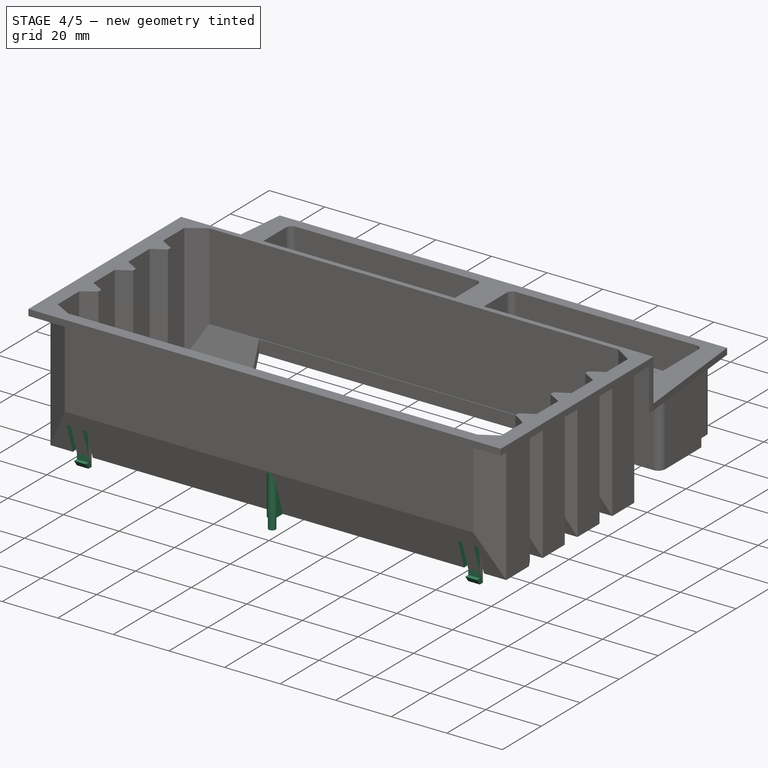
[diagram: stage 4 of 5 — iso view after this stage's code; geometry added in this stage tinted green]
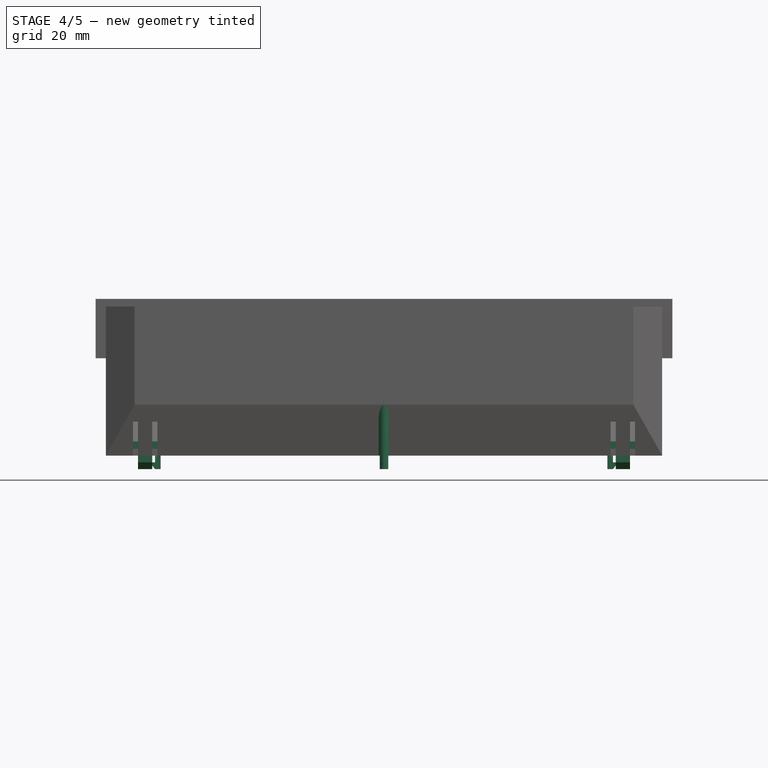
[diagram: stage 4 of 5 — front view after this stage's code; geometry added in this stage tinted green]
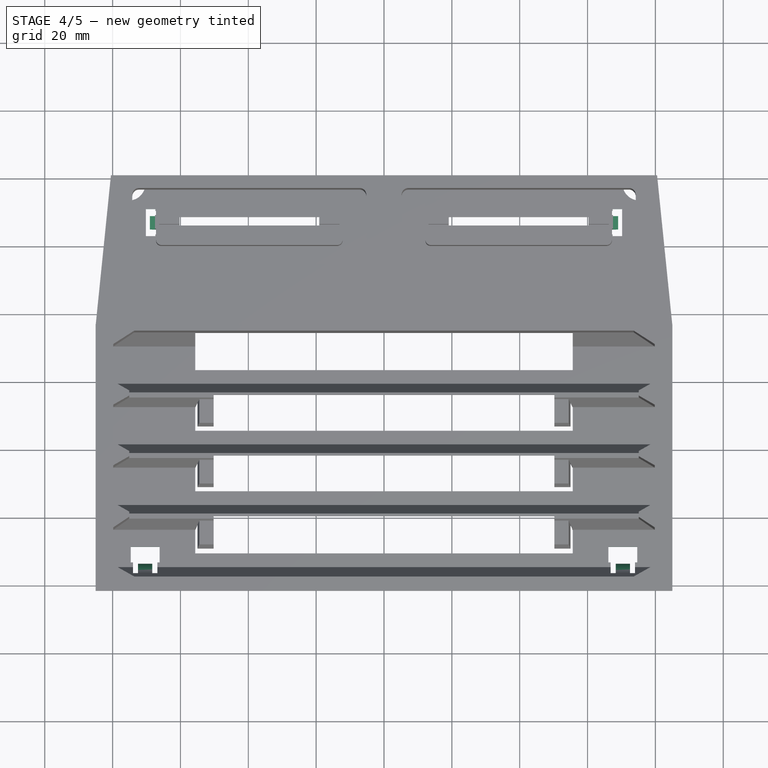
[diagram: stage 4 of 5 — top view after this stage's code; geometry added in this stage tinted green]
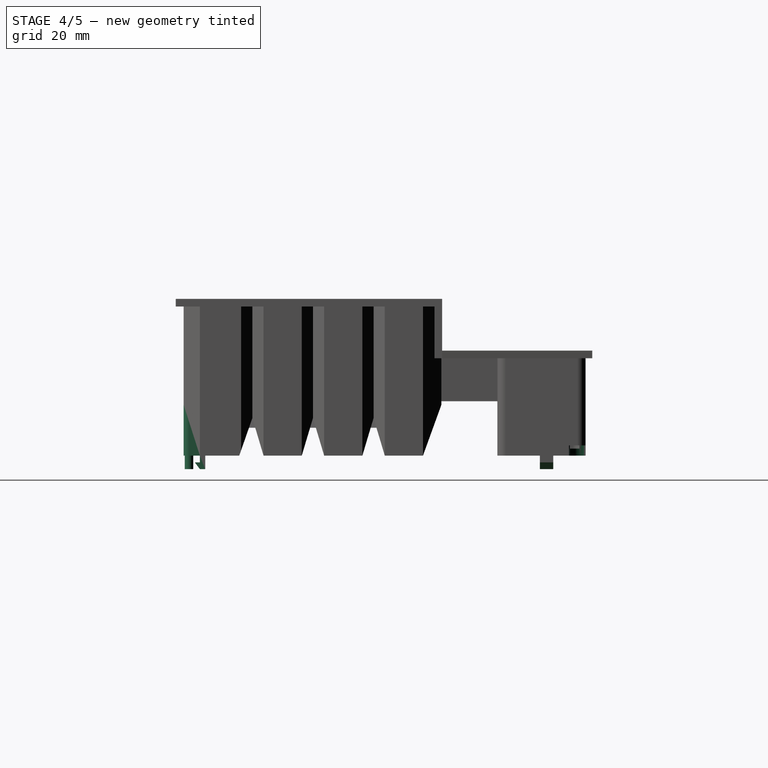
[diagram: stage 4 of 5 — right view after this stage's code; geometry added in this stage tinted green]
FEATURE [Sketcher::SketchObject] Sketch018
  ArcFitTolerance = 1e-06
  AttachmentSupport = -> [Pocket009]
  ExternalGeometry = -> [Pocket009]
  FullyConstrained = true
  MakeInternals = false
  MapMode = 5
  Placement = pos=(0,0,-4.217e-13) rot=(0.707107,0.707107,0;3.14159rad)
  sketch-geometry (2):
    g0: Circle CenterX=118.5 CenterY=-75.3 CenterZ=0 NormalX=0 NormalY=0 NormalZ=1 AngleXU=0 Radius=5
    g1: Circle CenterX=118.5 CenterY=75.3 CenterZ=0 NormalX=0 NormalY=0 NormalZ=1 AngleXU=0 Radius=5
  constraints (5):
    c: Diameter(g0) = 10
    c: Equal(g1,g0)
    c: PointOnObject(g0,g-3)
    c: DistanceY(g-4,g0) = 0.75
    c: Symmetric(g0,g1,g-1)
FEATURE [PartDesign::Pocket] Pocket010
  BaseFeature = -> Pocket009
  Direction = (-6e-15,2e-15,1)
  Length = 3
  Length2 = 5
  Placement = pos=(0,0,0) rot=(1,1,1;2.0944rad)
  Profile = -> Sketch018
  ReferenceAxis = -> Sketch018 [N_Axis]
  Suppressed = false
  Type = 0
FEATURE [Sketcher::SketchObject] Sketch019
  ArcFitTolerance = 1e-06
  AttachmentSupport = -> [Pocket010]
  ExternalGeometry = -> [Pocket010]
  FullyConstrained = true
  MakeInternals = false
  MapMode = 5
  Placement = pos=(0,0,-1.517e-13) rot=(0.707107,0.707107,0;3.14159rad)
  sketch-geometry (4):
    g0: LineSegment StartX=4.8 StartY=1.6 StartZ=0 EndX=4.8 EndY=-1.6 EndZ=0
    g1: LineSegment StartX=4.8 StartY=-1.6 StartZ=0 EndX=1.6 EndY=-1.6 EndZ=0
    g2: ArcOfCircle CenterX=1.6 CenterY=0 CenterZ=0 NormalX=0 NormalY=0 NormalZ=1 AngleXU=0 Radius=1.6 StartAngle=1.5708 EndAngle=4.71239
    g3: LineSegment StartX=1.6 StartY=1.6 StartZ=0 EndX=4.8 EndY=1.6 EndZ=0
  constraints (12):
    c: PointOnObject(g0,g-3)
    c: PointOnObject(g0,g-3)
    c: Coincident(g0,g1)
    c: Horizontal(g1)
    c: Tangent(g1,g2) = 1.5708
    c: Coincident(g2,g3)
    c: Coincident(g3,g0)
    c: Horizontal(g3)
    c: Vertical(g2,g1)
    c: Tangent(g-4,g2)
    c: Horizontal(g2,g-1)
    c: DistanceY(g0,g0) = 3.2
FEATURE [PartDesign::Pad] Pad009
  BaseFeature = -> Pocket010
  Direction = (6e-15,-2e-15,-1)
  Length = 10
  Length2 = 10
  Placement = pos=(0,0,0) rot=(1,1,1;2.0944rad)
  Profile = -> Sketch019
  ReferenceAxis = -> Sketch019 [N_Axis]
  Reversed = true
  Suppressed = false
  Type = 5
FEATURE [Sketcher::SketchObject] Sketch020
  ArcFitTolerance = 1e-06
  AttachmentSupport = -> [Pad009]
  ExternalGeometry = -> [Pad009]
  FullyConstrained = true
  MakeInternals = false
  MapMode = 5
  Placement = pos=(0,0,-1.523e-13) rot=(0.707107,0.707107,0;3.14159rad)
  sketch-geometry (1):
    g0: Circle CenterX=1.6 CenterY=0 CenterZ=0 NormalX=0 NormalY=0 NormalZ=1 AngleXU=0 Radius=1.25
  constraints (2):
    c: Coincident(g0,g-3)
    c: Diameter(g0) = 2.5
FEATURE [PartDesign::Pad] Pad010
  BaseFeature = -> Pad009
  Direction = (6.3e-15,-2.1e-15,-1)
  Length = 4
  Length2 = 10
  Placement = pos=(0,0,0) rot=(1,1,1;2.0944rad)
  Profile = -> Sketch020
  ReferenceAxis = -> Sketch020 [N_Axis]
  Refine = true
  Suppressed = false
  Type = 0
FEATURE [Sketcher::SketchObject] Sketch021
  ArcFitTolerance = 1e-06
  AttachmentOffset = pos=(0,0,0) rot=(0,0,1;1.5708rad)
  AttachmentSupport = -> [Pad010]
  ExternalGeometry = -> [Pad010]
  FullyConstrained = true
  MakeInternals = false
  MapMode = 5
  Placement = pos=(0,0,-4.15e-14) rot=(1,0,0;3.14159rad)
  sketch-geometry (53):
    g0: LineSegment StartX=-65.85 StartY=-103.525 StartZ=0 EndX=-67.4 EndY=-103.525 EndZ=0
    g1: LineSegment StartX=-67.4 StartY=-103.525 StartZ=0 EndX=-67.4 EndY=-103 EndZ=0
    g2: LineSegment StartX=-67.4 StartY=-103 StartZ=0 EndX=-70.2 EndY=-103 EndZ=0
    g3: LineSegment StartX=-70.2 StartY=-103 StartZ=0 EndX=-70.2 EndY=-111 EndZ=0
    g4: LineSegment StartX=-70.2 StartY=-111 StartZ=0 EndX=-67.4 EndY=-111 EndZ=0
    g5: LineSegment StartX=-67.4 StartY=-111 StartZ=0 EndX=-67.4 EndY=-110.475 EndZ=0
    g6: LineSegment StartX=-67.4 StartY=-110.475 StartZ=0 EndX=-65.85 EndY=-110.475 EndZ=0
    g7: LineSegment StartX=-65.85 StartY=-110.475 StartZ=0 EndX=-65.85 EndY=-108.975 EndZ=0
    g8: LineSegment StartX=-65.85 StartY=-108.975 StartZ=0 EndX=-67.5 EndY=-108.975 EndZ=0
    g9: LineSegment StartX=-67.5 StartY=-108.975 StartZ=0 EndX=-67.5 EndY=-105.025 EndZ=0
    g10: LineSegment StartX=-67.5 StartY=-105.025 StartZ=0 EndX=-65.85 EndY=-105.025 EndZ=0
    g11: LineSegment StartX=-65.85 StartY=-105.025 StartZ=0 EndX=-65.85 EndY=-103.525 EndZ=0
    g12: LineSegment StartX=65.85 StartY=-105.025 StartZ=0 EndX=67.5 EndY=-105.025 EndZ=0
    g13: LineSegment StartX=67.5 StartY=-105.025 StartZ=0 EndX=67.5 EndY=-108.975 EndZ=0
    g14: LineSegment StartX=67.5 StartY=-108.975 StartZ=0 EndX=65.85 EndY=-108.975 EndZ=0
    g15: LineSegment StartX=65.85 StartY=-108.975 StartZ=0 EndX=65.85 EndY=-110.475 EndZ=0
    g16: LineSegment StartX=65.85 StartY=-110.475 StartZ=0 EndX=67.4 EndY=-110.475 EndZ=0
    g17: LineSegment StartX=67.4 StartY=-110.475 StartZ=0 EndX=67.4 EndY=-111 EndZ=0
    g18: LineSegment StartX=67.4 StartY=-111 StartZ=0 EndX=70.2 EndY=-111 EndZ=0
    g19: LineSegment StartX=70.2 StartY=-111 StartZ=0 EndX=70.2 EndY=-103 EndZ=0
    g20: LineSegment StartX=70.2 StartY=-103 StartZ=0 EndX=67.4 EndY=-103 EndZ=0
    g21: LineSegment StartX=67.4 StartY=-103 StartZ=0 EndX=67.4 EndY=-103.525 EndZ=0
    g22: LineSegment StartX=67.4 StartY=-103.525 StartZ=0 EndX=65.85 EndY=-103.525 EndZ=0
    g23: LineSegment StartX=65.85 StartY=-103.525 StartZ=0 EndX=65.85 EndY=-105.025 EndZ=0
    g24: GeomPoint [constr] X=-65.85 Y=-107 Z=0
    g25: GeomPoint [constr] X=65.85 Y=-107 Z=0
    g26: LineSegment StartX=-74 StartY=2.3 StartZ=0 EndX=-74 EndY=-6.76667 EndZ=0
    g27: LineSegment StartX=-74 StartY=-6.76667 StartZ=0 EndX=-74.65 EndY=-6.76667 EndZ=0
    g28: LineSegment StartX=-74.65 StartY=-6.76667 StartZ=0 EndX=-74.65 EndY=-11.3667 EndZ=0
    g29: LineSegment StartX=-74.65 StartY=-11.3667 StartZ=0 EndX=-66.15 EndY=-11.3667 EndZ=0
    g30: LineSegment StartX=-66.15 StartY=-11.3667 StartZ=0 EndX=-66.15 EndY=-6.76667 EndZ=0
    g31: LineSegment StartX=-66.15 StartY=-6.76667 StartZ=0 EndX=-66.8 EndY=-6.76667 EndZ=0
    g32: LineSegment StartX=-66.8 StartY=-6.76667 StartZ=0 EndX=-66.8 EndY=2.3 EndZ=0
    g33: LineSegment StartX=-66.8 StartY=2.3 StartZ=0 EndX=-68.3 EndY=2.3 EndZ=0
    g34: LineSegment StartX=-68.3 StartY=2.3 StartZ=0 EndX=-68.3 EndY=-6.36667 EndZ=0
    g35: LineSegment StartX=-68.3 StartY=-6.36667 StartZ=0 EndX=-72.5 EndY=-6.36667 EndZ=0
    g36: LineSegment StartX=-72.5 StartY=-6.36667 StartZ=0 EndX=-72.5 EndY=2.3 EndZ=0
    g37: LineSegment StartX=-72.5 StartY=2.3 StartZ=0 EndX=-74 EndY=2.3 EndZ=0
    g38: GeomPoint [constr] X=-70.4 Y=-6.36667 Z=0
    g39: GeomPoint [constr] X=-70.4 Y=-11.3667 Z=0
    g40: LineSegment [constr] StartX=-70.4 StartY=-11.3667 StartZ=0 EndX=-70.4 EndY=-6.36667 EndZ=0
    g41: LineSegment StartX=68.3 StartY=2.3 StartZ=0 EndX=66.8 EndY=2.3 EndZ=0
    g42: LineSegment StartX=66.8 StartY=2.3 StartZ=0 EndX=66.8 EndY=-6.76667 EndZ=0
    g43: LineSegment StartX=66.8 StartY=-6.76667 StartZ=0 EndX=66.15 EndY=-6.76667 EndZ=0
    g44: LineSegment StartX=66.15 StartY=-6.76667 StartZ=0 EndX=66.15 EndY=-11.3667 EndZ=0
    g45: LineSegment StartX=66.15 StartY=-11.3667 StartZ=0 EndX=74.65 EndY=-11.3667 EndZ=0
    g46: LineSegment StartX=74.65 StartY=-11.3667 StartZ=0 EndX=74.65 EndY=-6.76667 EndZ=0
    g47: LineSegment StartX=74.65 StartY=-6.76667 StartZ=0 EndX=74 EndY=-6.76667 EndZ=0
    g48: LineSegment StartX=74 StartY=-6.76667 StartZ=0 EndX=74 EndY=2.3 EndZ=0
    g49: LineSegment StartX=74 StartY=2.3 StartZ=0 EndX=72.5 EndY=2.3 EndZ=0
    g50: LineSegment StartX=72.5 StartY=2.3 StartZ=0 EndX=72.5 EndY=-6.36667 EndZ=0
    g51: LineSegment StartX=72.5 StartY=-6.36667 StartZ=0 EndX=68.3 EndY=-6.36667 EndZ=0
    g52: LineSegment StartX=68.3 StartY=-6.36667 StartZ=0 EndX=68.3 EndY=2.3 EndZ=0
  constraints (145):
    c: PointOnObject(g0,g-5)
    c: Horizontal(g0)
    c: Coincident(g0,g1)
    c: Vertical(g1)
    c: Coincident(g1,g2)
    c: Horizontal(g2)
    c: Coincident(g2,g3)
    c: Vertical(g3)
    c: Coincident(g3,g4)
    c: Horizontal(g4)
    c: Coincident(g4,g5)
    c: Vertical(g5)
    c: Coincident(g5,g6)
    c: PointOnObject(g6,g-5)
    c: Horizontal(g6)
    c: Coincident(g6,g7)
    c: PointOnObject(g7,g-5)
    c: Coincident(g7,g8)
    c: Horizontal(g8)
    c: Coincident(g8,g9)
    c: Vertical(g9)
    c: Coincident(g9,g10)
    c: Horizontal(g10)
    c: Coincident(g10,g11)
    c: Coincident(g11,g0)
    c: Equal(g11,g7)
    c: DistanceY(g11,g11) = 1.5
    c: Equal(g1,g5)
    c: DistanceX(g2,g2) = 2.8
    c: PointOnObject(g12,g-6)
    c: Horizontal(g12)
    c: Coincident(g12,g13)
    c: Vertical(g13)
    c: Coincident(g13,g14)
    c: PointOnObject(g14,g-6)
    c: Horizontal(g14)
    c: Coincident(g14,g15)
    c: PointOnObject(g15,g-6)
    c: Coincident(g15,g16)
    c: Horizontal(g16)
    c: Coincident(g16,g17)
    c: Vertical(g17)
    c: Coincident(g17,g18)
    c: Horizontal(g18)
    c: Coincident(g18,g19)
    c: Vertical(g19)
    c: Coincident(g19,g20)
    c: Horizontal(g20)
    c: Coincident(g20,g21)
    c: Vertical(g21)
    c: Coincident(g21,g22)
    c: PointOnObject(g22,g-6)
    c: Horizontal(g22)
    c: Coincident(g22,g23)
    c: Coincident(g23,g12)
    c: DistanceX(g9,g12) = 135
    c: Symmetric(g12,g9,g-2)
    c: Symmetric(g-5,g-5,g24)
    c: Symmetric(g-6,g-6,g25)
    c: Symmetric(g10,g7,g24)
    c: Horizontal(g1,g20)
    c: Horizontal(g4,g17)
    c: Horizontal(g6,g15)
    c: Equal(g18,g20)
    c: Equal(g4,g18)
    c: Equal(g4,g2)
    c: Equal(g6,g16)
    c: DistanceY(g3,g3) = 8
    c: DistanceX(g3,g6) = 4.35
    c: DistanceY(g6,g0) = 6.95
    c: Horizontal(g22,g0)
    c: Horizontal(g14,g7)
    c: PointOnObject(g26,g-7)
    c: Vertical(g26)
    c: Coincident(g26,g27)
    c: Horizontal(g27)
    c: Coincident(g27,g28)
    c: Vertical(g28)
    c: Coincident(g28,g29)
    c: Horizontal(g29)
    c: Coincident(g29,g30)
    c: Vertical(g30)
    c: Coincident(g30,g31)
    c: Horizontal(g31)
    c: Coincident(g31,g32)
    c: PointOnObject(g32,g-7)
    c: Vertical(g32)
    c: Coincident(g32,g33)
    c: PointOnObject(g33,g-7)
    c: Coincident(g33,g34)
    c: Vertical(g34)
    c: Coincident(g34,g35)
    c: Horizontal(g35)
    c: Coincident(g35,g36)
    c: PointOnObject(g36,g-7)
    c: Coincident(g36,g37)
    c: Coincident(g37,g26)
    c: Symmetric(g35,g35,g38)
    c: Symmetric(g29,g29,g39)
    c: Coincident(g40,g39)
    c: Coincident(g40,g38)
    c: Symmetric(g36,g33,g40)
    c: Symmetric(g26,g31,g40)
    c: DistanceX(g33,g33) = 1.5
    c: DistanceY(g28,g28) = 4.6
    c: DistanceY(g-3,g28) = 4
    c: DistanceY(g28,g35) = 5
    c: DistanceX(g-3,g27) = 5.75
    c: DistanceX(g29,g29) = 8.5
    c: DistanceX(g35,g35) = 4.2
    c: PointOnObject(g41,g-7)
    c: PointOnObject(g41,g-7)
    c: Coincident(g41,g42)
    c: Vertical(g42)
    c: Coincident(g42,g43)
    c: Horizontal(g43)
    c: Coincident(g43,g44)
    c: Vertical(g44)
    c: Coincident(g44,g45)
    c: Horizontal(g45)
    c: Coincident(g45,g46)
    c: Vertical(g46)
    c: Coincident(g46,g47)
    c: Horizontal(g47)
    c: Coincident(g47,g48)
    c: PointOnObject(g48,g-7)
    c: Vertical(g48)
    c: Coincident(g48,g49)
    c: PointOnObject(g49,g-7)
    c: Coincident(g49,g50)
    c: Vertical(g50)
    c: Coincident(g50,g51)
    c: Horizontal(g51)
    c: Coincident(g51,g52)
    c: Coincident(g52,g41)
    c: Vertical(g52)
    c: Equal(g41,g33)
    c: Equal(g41,g49)
    c: Equal(g35,g51)
    c: Equal(g29,g45)
    c: Equal(g43,g47)
    c: Horizontal(g29,g44)
    c: Horizontal(g51,g34)
    c: Horizontal(g42,g47)
    c: Symmetric(g43,g30,g-2)
FEATURE [PartDesign::Pocket] Pocket011
  BaseFeature = -> Pad010
  Direction = (-3.7e-15,6.3e-15,1)
  Length = 10
  Length2 = 5
  Placement = pos=(0,0,0) rot=(1,1,1;2.0944rad)
  Profile = -> Sketch021
  ReferenceAxis = -> Sketch021 [N_Axis]
  Refine = true
  Suppressed = false
  Type = 0
FEATURE [Sketcher::SketchObject] Sketch022
  ArcFitTolerance = 1e-06
  AttachmentOffset = pos=(0,0,0) rot=(0,0,1;1.5708rad)
  AttachmentSupport = -> [Pocket011]
  ExternalGeometry = -> [Pocket011]
  FullyConstrained = true
  MakeInternals = false
  MapMode = 5
  Placement = pos=(4.66e-14,105.025,-6.72e-13) rot=(1,0,0;1.5708rad)
  sketch-geometry (14):
    g0: LineSegment StartX=-67.5 StartY=16 StartZ=0 EndX=-67.5 EndY=-2 EndZ=0
    g1: LineSegment StartX=-67.5 StartY=-2 StartZ=0 EndX=-69 EndY=-2 EndZ=0
    g2: LineSegment StartX=-69 StartY=-2 StartZ=0 EndX=-67.5 EndY=-4 EndZ=0
    g3: LineSegment StartX=-67.5 StartY=-4 StartZ=0 EndX=-65.85 EndY=-4 EndZ=0
    g4: LineSegment StartX=-65.85 StartY=-4 StartZ=0 EndX=-65.85 EndY=2 EndZ=0
    g5: LineSegment StartX=-63.35 StartY=16 StartZ=0 EndX=-67.5 EndY=16 EndZ=0
    g6: LineSegment StartX=67.5 StartY=16 StartZ=0 EndX=67.5 EndY=-2 EndZ=0
    g7: LineSegment StartX=67.5 StartY=-2 StartZ=0 EndX=69 EndY=-2 EndZ=0
    g8: LineSegment StartX=69 StartY=-2 StartZ=0 EndX=67.5 EndY=-4 EndZ=0
    g9: LineSegment StartX=67.5 StartY=-4 StartZ=0 EndX=65.85 EndY=-4 EndZ=0
    g10: LineSegment StartX=65.85 StartY=-4 StartZ=0 EndX=65.85 EndY=2 EndZ=0
    g11: LineSegment StartX=67.5 StartY=16 StartZ=0 EndX=63.35 EndY=16 EndZ=0
    g12: ArcOfCircle CenterX=25.4 CenterY=2 CenterZ=0 NormalX=0 NormalY=0 NormalZ=1 AngleXU=0 Radius=40.45 StartAngle=0 EndAngle=0.353418
    g13: ArcOfCircle CenterX=-25.4 CenterY=2 CenterZ=0 NormalX=0 NormalY=0 NormalZ=1 AngleXU=0 Radius=40.45 StartAngle=2.78817 EndAngle=3.14159
  constraints (42):
    c: Vertical(g0)
    c: Coincident(g0,g1)
    c: Horizontal(g1)
    c: Coincident(g2,g3)
    c: Horizontal(g3)
    c: Coincident(g3,g4)
    c: Vertical(g4)
    c: Horizontal(g5)
    c: Vertical(g0,g2)
    c: DistanceY(g2,g0) = 2
    c: DistanceX(g1,g0) = 1.5
    c: Vertical(g6)
    c: Coincident(g6,g7)
    c: Horizontal(g7)
    c: Coincident(g7,g8)
    c: Coincident(g8,g9)
    c: Horizontal(g9)
    c: Coincident(g9,g10)
    c: Vertical(g10)
    c: Horizontal(g11)
    c: Equal(g3,g9)
    c: Horizontal(g3,g9)
    c: Horizontal(g6,g0)
    c: Equal(g1,g7)
    c: Coincident(g6,g11)
    c: PointOnObject(g10,g-4)
    c: Coincident(g12,g11)
    c: Tangent(g12,g10) = -1.5708
    c: PointOnObject(g4,g-3)
    c: PointOnObject(g-7,g11)
    c: Horizontal(g5,g11)
    c: Coincident(g0,g5)
    c: DistanceX(g-3,g5) = 2.5
    c: Coincident(g13,g5)
    c: Tangent(g13,g4) = 1.5708
    c: Horizontal(g4,g10)
    c: Equal(g12,g13)
    c: DistanceY(g-1,g13) = 2
    c: Coincident(g1,g2)
    c: DistanceY(g0,g-3) = 2
    c: PointOnObject(g-8,g0)
    c: PointOnObject(g-9,g6)
FEATURE [PartDesign::Pad] Pad011
  BaseFeature = -> Pocket011
  Direction = (-1e-16,-1,6.4e-15)
  Length = 10
  Length2 = 10
  Placement = pos=(0,0,0) rot=(1,1,1;2.0944rad)
  Profile = -> Sketch022
  ReferenceAxis = -> Sketch022 [N_Axis]
  Refine = true
  Reversed = true
  Suppressed = false
  Type = 3
  UpToFace = -> Pocket011 [Face337]
FEATURE [Sketcher::SketchObject] Sketch023
  ArcFitTolerance = 1e-06
  AttachmentSupport = -> [Pad011]
  ExternalGeometry = -> [Pad011]
  FullyConstrained = true
  MakeInternals = false
  MapMode = 5
  Placement = pos=(-72.5,1.27523e-11,-2.984e-13) rot=(-0.57735,-0.57735,0.57735;2.0944rad)
  sketch-geometry (9):
    g0: ArcOfCircle CenterX=8.46429 CenterY=-11.5798 CenterZ=0 NormalX=0 NormalY=0 NormalZ=1 AngleXU=0 Radius=5.18357 StartAngle=2.34947 EndAngle=2.83189
    g1: ArcOfCircle CenterX=1.18309 CenterY=-4.2 CenterZ=0 NormalX=0 NormalY=0 NormalZ=1 AngleXU=0 Radius=5.18357 StartAngle=5.49106 EndAngle=6.28319
    g2: LineSegment StartX=6.36667 StartY=-4.2 StartZ=0 EndX=6.36667 EndY=4 EndZ=0
    g3: LineSegment StartX=6.36667 StartY=4 StartZ=0 EndX=4.8 EndY=4 EndZ=0
    g4: LineSegment StartX=4.8 StartY=4 StartZ=0 EndX=3.3 EndY=2 EndZ=0
    g5: LineSegment StartX=3.3 StartY=2 StartZ=0 EndX=4.8 EndY=2 EndZ=0
    g6: LineSegment StartX=4.8 StartY=2 StartZ=0 EndX=4.8 EndY=6e-14 EndZ=0
    g7: LineSegment StartX=4.8 StartY=6e-14 StartZ=0 EndX=1.6 EndY=-10 EndZ=0
    g8: LineSegment StartX=1.6 StartY=-10 StartZ=0 EndX=3.52733 EndY=-10 EndZ=0
  constraints (22):
    c: Tangent(g1,g0) = 1.5708
    c: Tangent(g1,g-4) = 1.5708
    c: Tangent(g0,g-3) = 1.5708
    c: Coincident(g1,g2)
    c: Vertical(g2)
    c: Coincident(g2,g3)
    c: Horizontal(g3)
    c: Coincident(g3,g4)
    c: Coincident(g4,g5)
    c: Horizontal(g5)
    c: Coincident(g5,g6)
    c: Coincident(g7,g-5)
    c: Coincident(g7,g8)
    c: Coincident(g8,g0)
    c: Vertical(g6)
    c: Coincident(g6,g-5)
    c: Equal(g1,g0)
    c: Coincident(g7,g6)
    c: DistanceY(g6,g6) = 2
    c: DistanceY(g4,g3) = 2
    c: DistanceX(g4,g5) = 1.5
    c: Vertical(g3,g5)
FEATURE [PartDesign::Pad] Pad012
  BaseFeature = -> Pad011
  Direction = (-1,1.76e-13,-4.1e-15)
  Length = 10
  Length2 = 10
  Placement = pos=(0,0,0) rot=(1,1,1;2.0944rad)
  Profile = -> Sketch023
  ReferenceAxis = -> Sketch023 [N_Axis]
  Refine = true
  Suppressed = false
  Type = 3
  UpToFace = -> Pad011 [Face185]
FEATURE [PartDesign::SubShapeBinder] Binder
  BindCopyOnChange = 0
  BindMode = 0
  ClaimChildren = false
  Context = -> Body [Binder.]
  Fuse = false
  MakeFace = true
  OffsetFill = false
  OffsetIntersection = false
  OffsetJoinType = 0
  OffsetOpenResult = false
  PartialLoad = false
  Placement = pos=(140.8,0,0) rot=(0,0,1;0rad)
  Relative = true
  Support = -> [Sketch023]
  _Version = 2
FEATURE [PartDesign::Pad] Pad013
  BaseFeature = -> Pad012
  Direction = (1,-1.768e-13,3.9e-15)
  Length = 10
  Length2 = 10
  Placement = pos=(0,0,0) rot=(1,1,1;2.0944rad)
  Profile = -> Binder
  Refine = true
  Suppressed = false
  Type = 3
  UpToFace = -> Pad012 [Face292]
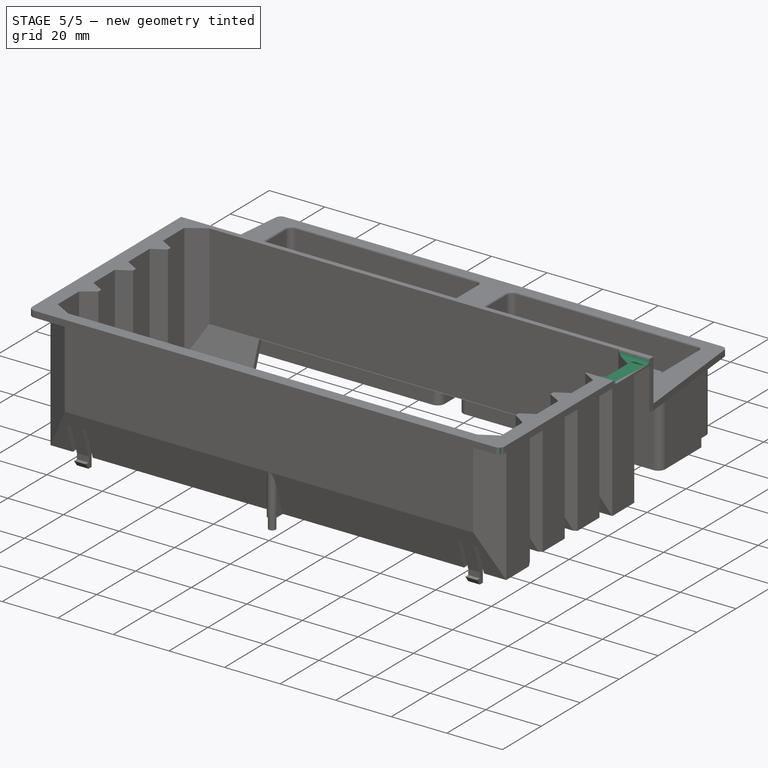
[diagram: stage 5 of 5 — iso view after this stage's code; geometry added in this stage tinted green]
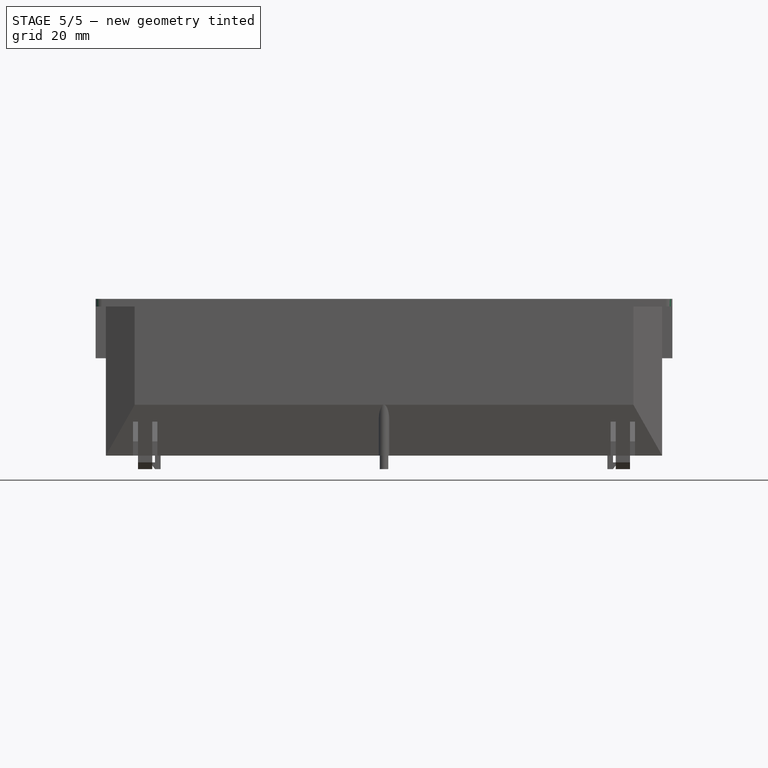
[diagram: stage 5 of 5 — front view after this stage's code; geometry added in this stage tinted green]
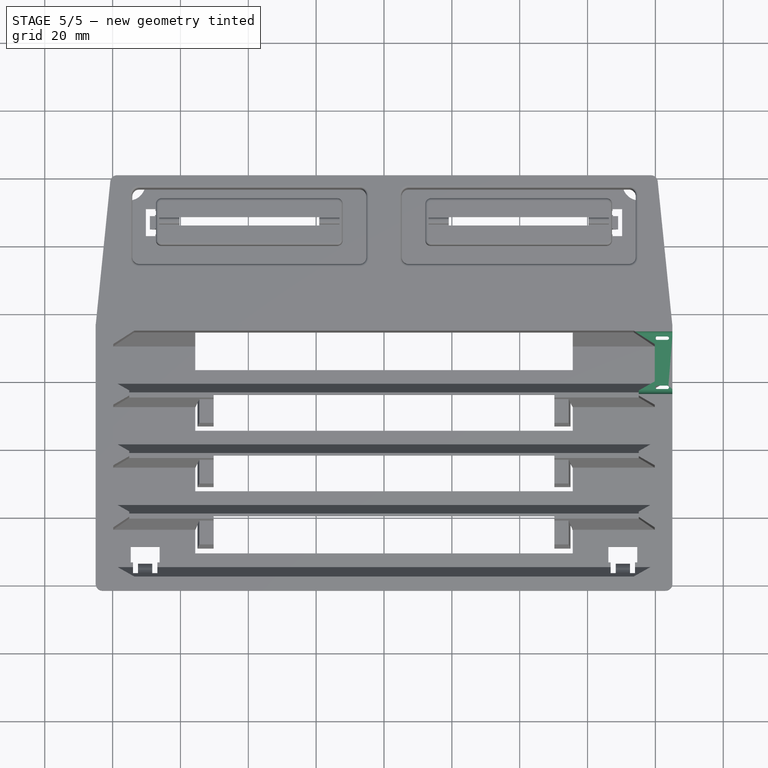
[diagram: stage 5 of 5 — top view after this stage's code; geometry added in this stage tinted green]
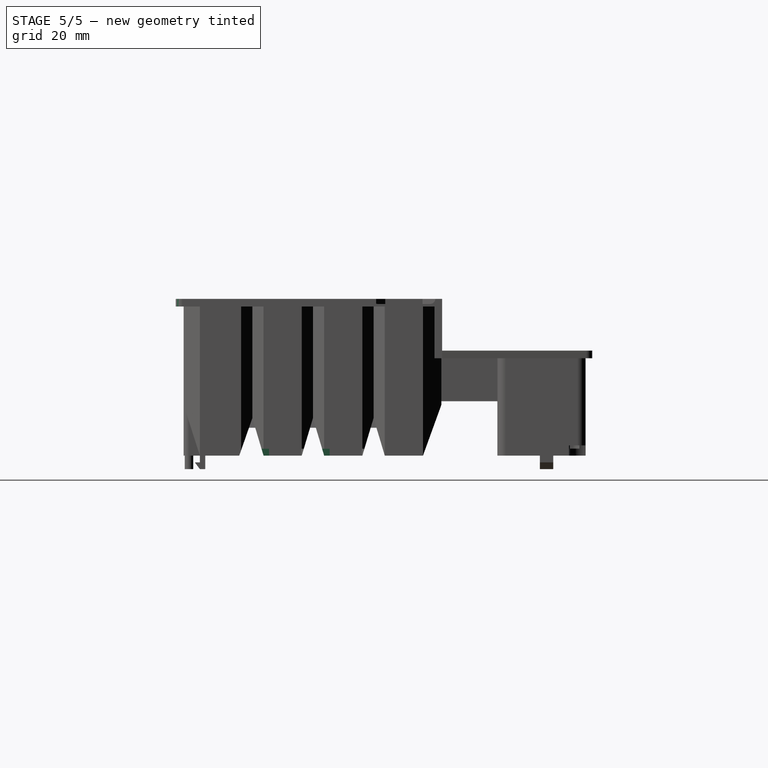
[diagram: stage 5 of 5 — right view after this stage's code; geometry added in this stage tinted green]
FEATURE [PartDesign::Fillet] Fillet
  Base = -> Pad013 [Edge266,Edge275,Edge273,Edge272]
  BaseFeature = -> Pad013
  Placement = pos=(0,0,0) rot=(1,1,1;2.0944rad)
  Radius = 2
  SupportTransform = false
  Suppressed = false
  UseAllEdges = false
FEATURE [PartDesign::Fillet] Fillet001
  Base = -> Fillet [Edge1119,Edge1117,Edge1122,Edge1124,Edge1129,Edge1127,Edge1132,Edge1133,Edge826,Edge779,Edge156,Edge148]
  BaseFeature = -> Fillet
  Placement = pos=(0,0,0) rot=(1,1,1;2.0944rad)
  Radius = 0.75
  SupportTransform = false
  Suppressed = false
  UseAllEdges = false
FEATURE [Sketcher::SketchObject] Sketch024
  ArcFitTolerance = 1e-06
  AttachmentSupport = -> [Fillet001]
  ExternalGeometry = -> [Fillet001]
  FullyConstrained = true
  MakeInternals = false
  MapMode = 5
  Placement = pos=(3.3e-14,74.3167,-3.63e-13) rot=(0.57735,0.57735,-0.57735;2.0944rad)
  sketch-geometry (4):
    g0: LineSegment StartX=-10.3528 StartY=55.625 StartZ=0 EndX=-14.9209 EndY=55.625 EndZ=0
    g1: LineSegment StartX=-14.9209 StartY=55.625 StartZ=0 EndX=-14.9209 EndY=-55.625 EndZ=0
    g2: LineSegment StartX=-14.9209 StartY=-55.625 StartZ=0 EndX=-10.3528 EndY=-55.625 EndZ=0
    g3: LineSegment StartX=-10.3528 StartY=-55.625 StartZ=0 EndX=-10.3528 EndY=55.625 EndZ=0
  constraints (10):
    c: Coincident(g0,g1)
    c: Coincident(g1,g2)
    c: Coincident(g2,g3)
    c: Coincident(g3,g0)
    c: Horizontal(g0)
    c: Horizontal(g2)
    c: Vertical(g1)
    c: Vertical(g3)
    c: Coincident(g0,g-3)
    c: Coincident(g1,g-4)
FEATURE [PartDesign::Pocket] Pocket012
  BaseFeature = -> Fillet001
  Direction = (0,1,-4.9e-15)
  Length = 5
  Length2 = 5
  Placement = pos=(0,0,0) rot=(1,1,1;2.0944rad)
  Profile = -> Sketch024
  ReferenceAxis = -> Sketch024 [N_Axis]
  Refine = true
  Suppressed = false
  Type = 0
FEATURE [Sketcher::SketchObject] Sketch025
  ArcFitTolerance = 1e-06
  AttachmentSupport = -> [Pocket012]
  ExternalGeometry = -> [Pocket012]
  FullyConstrained = true
  MakeInternals = false
  MapMode = 5
  Placement = pos=(-1.67e-14,5.6e-15,2) rot=(0.707107,0.707107,0;3.14159rad)
  sketch-geometry (5):
    g0: LineSegment StartX=20.5667 StartY=82 StartZ=0 EndX=20.5667 EndY=52.5527 EndZ=0
    g1: LineSegment StartX=20.5667 StartY=52.5527 StartZ=0 EndX=55.7 EndY=52.5527 EndZ=0
    g2: LineSegment StartX=55.7 StartY=52.5527 StartZ=0 EndX=55.7 EndY=82 EndZ=0
    g3: LineSegment StartX=55.7 StartY=82 StartZ=0 EndX=20.5667 EndY=82 EndZ=0
    g4: GeomPoint [constr] X=38.1333 Y=82 Z=0
  constraints (12):
    c: Coincident(g0,g1)
    c: Coincident(g1,g2)
    c: Coincident(g2,g3)
    c: Coincident(g3,g0)
    c: Vertical(g0)
    c: Vertical(g2)
    c: Horizontal(g1)
    c: Horizontal(g3)
    c: Symmetric(g-3,g-4,g4)
    c: Symmetric(g2,g0,g4)
    c: DistanceX(g-3,g2) = 3
    c: DistanceY(g1,g-3) = 3
FEATURE [PartDesign::Pocket] Pocket013
  BaseFeature = -> Pocket012
  Direction = (-8.3e-15,2.8e-15,1)
  Length = 5
  Length2 = 5
  Placement = pos=(0,0,0) rot=(1,1,1;2.0944rad)
  Profile = -> Sketch025
  ReferenceAxis = -> Sketch025 [N_Axis]
  Refine = true
  Reversed = true
  Suppressed = false
  Type = 1
FEATURE [Sketcher::SketchObject] Sketch026
  ArcFitTolerance = 1e-06
  AttachmentOffset = pos=(0,0,7) rot=(0,0,1;0rad)
  AttachmentSupport = -> [Pocket013]
  ExternalGeometry = -> [Pocket013]
  FullyConstrained = true
  MakeInternals = false
  MapMode = 5
  Placement = pos=(72.8,-3.395e-13,3.071e-13) rot=(-0.57735,-0.57735,0.57735;2.0944rad)
  sketch-geometry (5):
    g0: ArcOfCircle CenterX=57.1833 CenterY=-46.2 CenterZ=0 NormalX=0 NormalY=0 NormalZ=1 AngleXU=0 Radius=1.5 StartAngle=1.5708 EndAngle=4.71239
    g1: ArcOfCircle CenterX=72.6833 CenterY=-46.2 CenterZ=0 NormalX=0 NormalY=0 NormalZ=1 AngleXU=0 Radius=1.5 StartAngle=4.71239 EndAngle=7.85398
    g2: LineSegment StartX=57.1833 StartY=-44.7 StartZ=0 EndX=72.6833 EndY=-44.7 EndZ=0
    g3: LineSegment StartX=57.1833 StartY=-47.7 StartZ=0 EndX=72.6833 EndY=-47.7 EndZ=0
    g4: GeomPoint [constr] X=64.9333 Y=-46.2 Z=0
  constraints (10):
    c: Tangent(g0,g2) = 1.5708
    c: Tangent(g0,g3) = -1.5708
    c: Tangent(g1,g2) = 1.5708
    c: Tangent(g1,g3) = -1.5708
    c: Equal(g0,g1)
    c: Horizontal(g3)
    c: Radius(g0) = 1.5
    c: Symmetric(g0,g1,g4)
    c: Symmetric(g-3,g-3,g4)
    c: DistanceX(g-3,g1) = 2.25
FEATURE [PartDesign::Pocket] Pocket014
  BaseFeature = -> Pocket013
  Direction = (1,-4.7e-15,4.2e-15)
  Length = 5
  Length2 = 5
  Placement = pos=(0,0,0) rot=(1,1,1;2.0944rad)
  Profile = -> Sketch026
  ReferenceAxis = -> Sketch026 [N_Axis]
  Suppressed = false
  Type = 1
FEATURE [Sketcher::SketchObject] Sketch027
  ArcFitTolerance = 1e-06
  AttachmentSupport = -> [Pocket014]
  ExternalGeometry = -> [Pocket014]
  FullyConstrained = true
  MakeInternals = false
  MapMode = 5
  Placement = pos=(-4.148e-13,1.513e-13,43.95) rot=(0.707107,0.707107,0;3.14159rad)
  sketch-geometry (8):
    g0: ArcOfCircle CenterX=57.6833 CenterY=80.5 CenterZ=0 NormalX=0 NormalY=0 NormalZ=1 AngleXU=0 Radius=0.5 StartAngle=3.14159 EndAngle=6.28319
    g1: ArcOfCircle CenterX=57.6833 CenterY=83.5 CenterZ=0 NormalX=0 NormalY=0 NormalZ=1 AngleXU=0 Radius=0.5 StartAngle=-1.07e-14 EndAngle=3.14159
    g2: LineSegment StartX=57.1833 StartY=80.5 StartZ=0 EndX=57.1833 EndY=83.5 EndZ=0
    g3: LineSegment StartX=58.1833 StartY=80.5 StartZ=0 EndX=58.1833 EndY=83.5 EndZ=0
    g4: ArcOfCircle CenterX=72.1833 CenterY=83.5 CenterZ=0 NormalX=0 NormalY=0 NormalZ=1 AngleXU=0 Radius=0.5 StartAngle=2.7e-15 EndAngle=3.14159
    g5: ArcOfCircle CenterX=72.1833 CenterY=80.5 CenterZ=0 NormalX=0 NormalY=0 NormalZ=1 AngleXU=0 Radius=0.5 StartAngle=3.14159 EndAngle=6.28319
    g6: LineSegment StartX=72.6833 StartY=83.5 StartZ=0 EndX=72.6833 EndY=80.5 EndZ=0
    g7: LineSegment StartX=71.6833 StartY=83.5 StartZ=0 EndX=71.6833 EndY=80.5 EndZ=0
  constraints (20):
    c: Tangent(g0,g2) = 1.5708
    c: Tangent(g0,g3) = -1.5708
    c: Tangent(g1,g2) = 1.5708
    c: Tangent(g1,g3) = -1.5708
    c: Equal(g0,g1)
    c: Vertical(g3)
    c: Distance(g0,g1) = 3
    c: Radius(g0) = 0.5
    c: Vertical(g-3,g1)
    c: DistanceY(g1,g-3) = 1.5
    c: Tangent(g4,g6) = 1.5708
    c: Tangent(g4,g7) = -1.5708
    c: Tangent(g5,g6) = 1.5708
    c: Tangent(g5,g7) = -1.5708
    c: Equal(g4,g5)
    c: Vertical(g7)
    c: Equal(g4,g1)
    c: Horizontal(g1,g4)
    c: Horizontal(g0,g5)
    c: Vertical(g4,g-3)
FEATURE [PartDesign::Pocket] Pocket015
  BaseFeature = -> Pocket014
  Direction = (-9.4e-15,3.4e-15,1)
  Length = 5
  Length2 = 5
  Placement = pos=(0,0,0) rot=(1,1,1;2.0944rad)
  Profile = -> Sketch027
  ReferenceAxis = -> Sketch027 [N_Axis]
  Suppressed = false
  Type = 1
FEATURE [PartDesign::Body] Body
  AllowCompound = false
  Group = -> [Sketch,Sketch001,Pad,Pad001,Pad002,Sketch002,Pocket,Sketch003,Pocket001,Sketch004,Pocket002,Sketch005,Pad003,Pad004,Sketch006,Pocket003,Sketch007,Pad005,Sketch008,Pocket004,Sketch009,Pad006,Sketch010,Pocket005,Sketch011,Pocket006,Sketch012,Pocket007,Sketch013,Pocket008,Sketch014,Pad007,DatumPlane,DatumPlane001,DatumPlane002,Sketch016,Pad008,Sketch017,Pocket009,Sketch018,Pocket010,Sketch019,Pad009,+20 more]
  Origin = -> Origin
  Tip = -> Pocket015
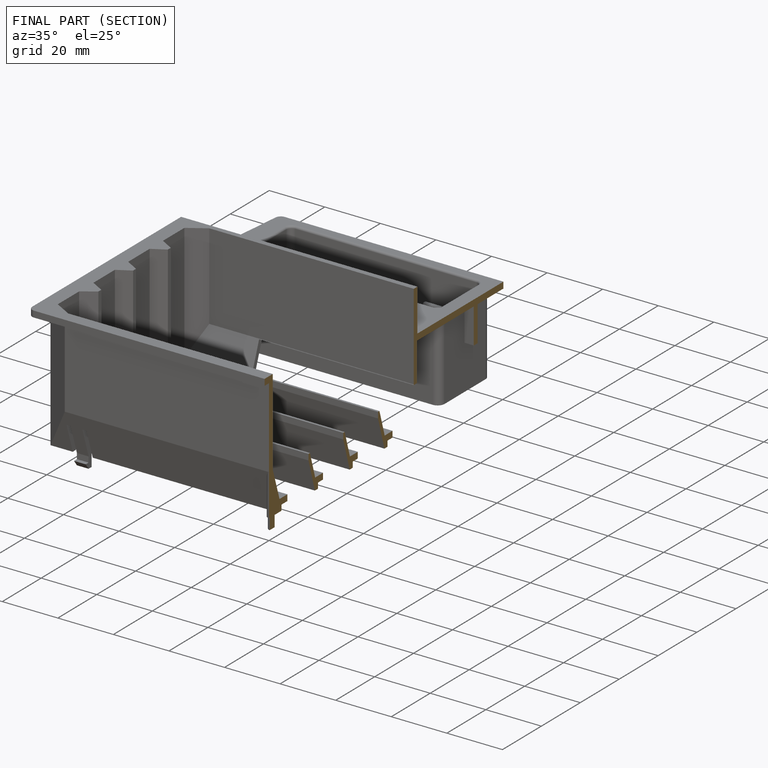
[diagram: finished part — half-section view (interior)]
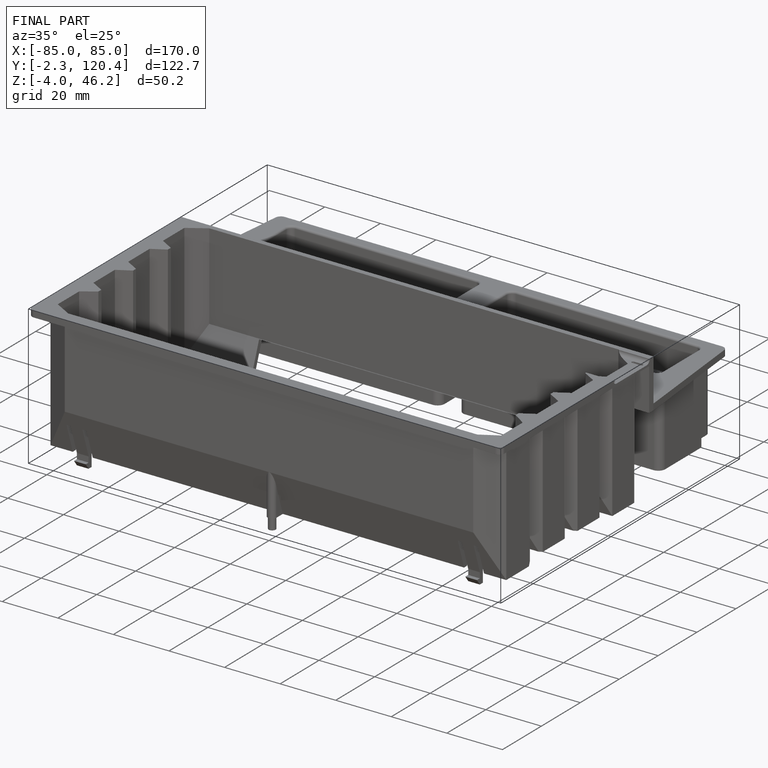
[diagram: finished part — iso view with bounding-box wireframe]
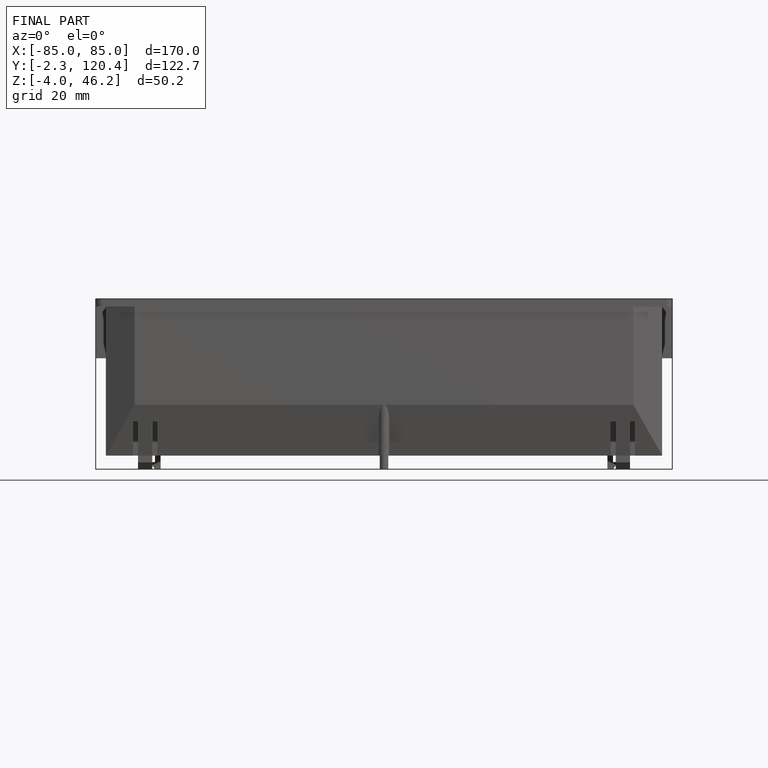
[diagram: finished part — front view with bounding-box wireframe]
